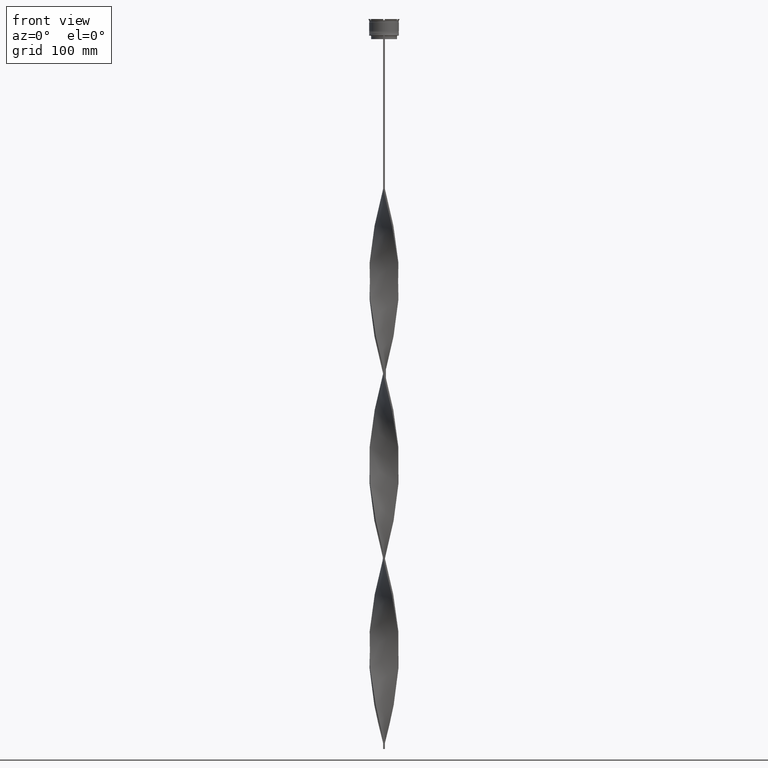
[diagram: clean part render]
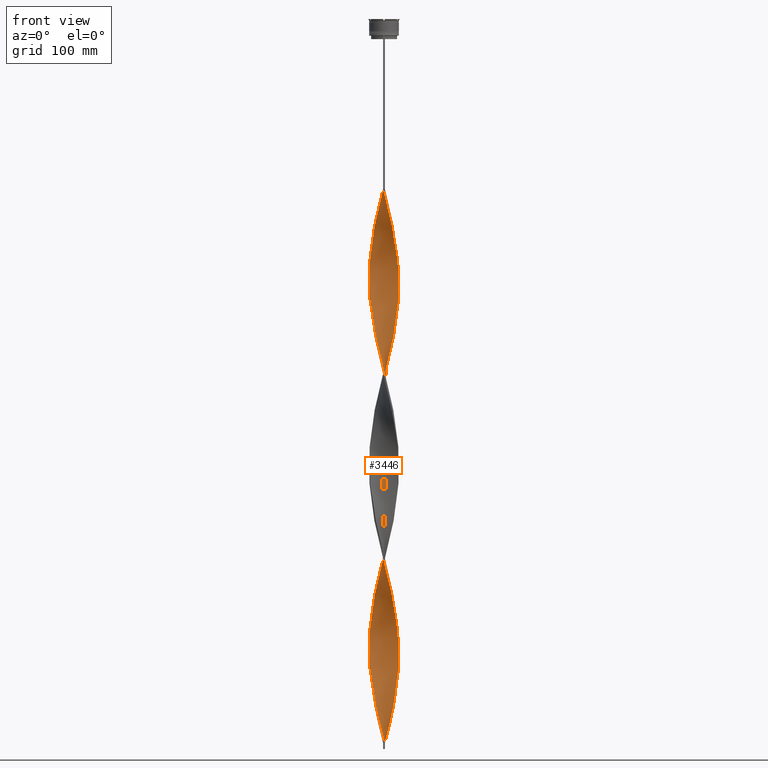
[diagram: same view with one face highlighted and labeled with its STEP entity id]
A machine part, front view. The second image highlights one B-rep face of the part: STEP entity #3446.
In plain terms, the highlighted face is a freeform B-spline surface patch.
Its self-contained STEP definition (entity closure, byte-faithful):
#1 = CARTESIAN_POINT ( 'NONE',  ( -5.364690916238543217, -11.31514875612458226, -273.4800000000000750 ) ) ;
#13 = CARTESIAN_POINT ( 'NONE',  ( 2.382186218714211989, -12.29380692948152820, -466.0933333333333621 ) ) ;
#14 = CARTESIAN_POINT ( 'NONE',  ( -2.382186218714212433, -12.29380692948152820, -596.5733333333333803 ) ) ;
#19 = CARTESIAN_POINT ( 'NONE',  ( -12.52471466338928074, 0.7514828798033587054, -376.0000000000000568 ) ) ;
#28 = CARTESIAN_POINT ( 'NONE',  ( -3.835060960407158159, 11.92077209873424870, -155.4266666666666765 ) ) ;
#40 = CARTESIAN_POINT ( 'NONE',  ( 10.95596916500943685, 6.064588993110950454, -559.2933333333334076 ) ) ;
#47 = CARTESIAN_POINT ( 'NONE',  ( -12.31811391348432316, -2.386896213156301183, -388.4266666666667334 ) ) ;
#52 = CARTESIAN_POINT ( 'NONE',  ( 11.92182448545694129, -3.911943871774655079, -357.3600000000000705 ) ) ;
#61 = CARTESIAN_POINT ( 'NONE',  ( 6.740552907874703514, -10.55355136890619860, -484.7333333333333485 ) ) ;
#67 = CARTESIAN_POINT ( 'NONE',  ( -6.012726175543712692, 11.01273480366649871, -164.7466666666667265 ) ) ;
#73 = CARTESIAN_POINT ( 'NONE',  ( -2.310751445539661386, 12.30743384125774575, -459.8799999999999955 ) ) ;
#88 = CARTESIAN_POINT ( 'NONE',  ( 6.012726175543710028, 11.01273480366650048, -587.2533333333335577 ) ) ;
#92 = EDGE_CURVE ( 'NONE', #4416, #4265, #1254, .T. ) ;
#100 = CARTESIAN_POINT ( 'NONE',  ( 11.65644370790820972, 4.576004816908206152, -391.5333333333334167 ) ) ;
#111 = CARTESIAN_POINT ( 'NONE',  ( 9.690996458280338288, -7.969804989054245503, -500.2666666666666515 ) ) ;
#119 = CARTESIAN_POINT ( 'NONE',  ( -6.679150936304338870, 10.59251824497200900, -167.8533333333333530 ) ) ;
#126 = EDGE_CURVE ( 'NONE', #4416, #3621, #3809, .T. ) ;
#131 = CARTESIAN_POINT ( 'NONE',  ( 12.42824121570641083, 1.533401540437624888, -379.1066666666666833 ) ) ;
#144 = CARTESIAN_POINT ( 'NONE',  ( 3.085069550408700678, 12.16205368295573130, -599.6799999999999500 ) ) ;
#151 = CARTESIAN_POINT ( 'NONE',  ( 12.11996919947063134, 3.149420042465480130, -236.2000000000000171 ) ) ;
#153 = CARTESIAN_POINT ( 'NONE',  ( 3.085069550408703343, -12.16205368295572953, -307.6533333333333644 ) ) ;
#167 = CARTESIAN_POINT ( 'NONE',  ( 7.954078399437126023, 9.671873490467488566, -577.9333333333333940 ) ) ;
#175 = CARTESIAN_POINT ( 'NONE',  ( 4.652802097321417918, -11.65266650003840709, -164.7466666666666981 ) ) ;
#179 = CARTESIAN_POINT ( 'NONE',  ( -11.65644370790820794, -4.576004816908209705, -546.8666666666666742 ) ) ;
#197 = CARTESIAN_POINT ( 'NONE',  ( 2.310751445539661830, -12.30743384125774575, -304.5466666666666811 ) ) ;
#203 = ORIENTED_EDGE ( 'NONE', *, *, #92, .T. ) ;
#205 = CARTESIAN_POINT ( 'NONE',  ( 8.615698626491365530, -9.121564618826679904, -183.3866666666666845 ) ) ;
#207 = CARTESIAN_POINT ( 'NONE',  ( -0.03643334067061931858, -12.54718600044023979, -605.8933333333335440 ) ) ;
#217 = CARTESIAN_POINT ( 'NONE',  ( 8.010112353542544028, 9.625518172214164281, -416.3866666666666561 ) ) ;
#223 = CARTESIAN_POINT ( 'NONE',  ( 4.585052370405612088, 11.67949051451277143, -282.8000000000000682 ) ) ;
#225 = CARTESIAN_POINT ( 'NONE',  ( -12.42824121570641083, -1.533401540437621113, -534.4400000000000546 ) ) ;
#235 = CARTESIAN_POINT ( 'NONE',  ( 0.8225793935679390767, 12.49543369160420170, -447.4533333333333758 ) ) ;
#241 = CARTESIAN_POINT ( 'NONE',  ( -6.740552907874707067, 10.55355136890619505, -329.4000000000000341 ) ) ;
#245 = CARTESIAN_POINT ( 'NONE',  ( -10.57441756647771847, 6.753880147568762204, -500.2666666666666515 ) ) ;
#262 = CARTESIAN_POINT ( 'NONE',  ( -2.310751445539661386, 12.30743384125774575, -459.8799999999999955 ) ) ;
#270 = CARTESIAN_POINT ( 'NONE',  ( 12.13805464816931767, -3.078981870368072915, -211.3466666666666924 ) ) ;
#274 = CARTESIAN_POINT ( 'NONE',  ( -12.52242699500038015, 0.03636144779521285897, -528.2266666666666879 ) ) ;
#289 = CARTESIAN_POINT ( 'NONE',  ( 6.012726175543709140, 11.01273480366650048, -276.5866666666667584 ) ) ;
#290 = CARTESIAN_POINT ( 'NONE',  ( -0.7499999999999997780, 12.50000000000000000, -453.6666666666667425 ) ) ;
#296 = CARTESIAN_POINT ( 'NONE',  ( -2.382186218714214654, 12.29380692948152820, -310.7600000000000477 ) ) ;
#299 = CARTESIAN_POINT ( 'NONE',  ( -10.15222897254093937, -7.331080881363972068, -248.6266666666666936 ) ) ;
#317 = CARTESIAN_POINT ( 'NONE',  ( 10.61346148680155466, -6.692356773673691528, -506.4800000000001887 ) ) ;
#322 = CARTESIAN_POINT ( 'NONE',  ( -10.95596916500943685, 6.064588993110946014, -192.7066666666667061 ) ) ;
#335 = CARTESIAN_POINT ( 'NONE',  ( 4.585052370405611200, 11.67949051451277143, -282.8000000000000682 ) ) ;
#345 = CARTESIAN_POINT ( 'NONE',  ( -10.10948352700888186, -7.389914939776783598, -410.1733333333334031 ) ) ;
#361 = CARTESIAN_POINT ( 'NONE',  ( -8.615698626491365530, 9.121564618826679904, -338.7200000000000273 ) ) ;
#367 = CARTESIAN_POINT ( 'NONE',  ( -12.13805464816931767, 3.078981870368074247, -366.6800000000000068 ) ) ;
#383 = CARTESIAN_POINT ( 'NONE',  ( -11.36854588750133388, 5.309366094152150772, -357.3600000000000705 ) ) ;
#384 = CARTESIAN_POINT ( 'NONE',  ( -7.404526080593735848, -10.12947172560163978, -574.8266666666665969 ) ) ;
#389 = CARTESIAN_POINT ( 'NONE',  ( 1.608725446465268050, -12.44368138276816538, -462.9866666666666788 ) ) ;
#395 = CARTESIAN_POINT ( 'NONE',  ( -12.31811391348432316, 2.386896213156299407, -208.2400000000000659 ) ) ;
#407 = CARTESIAN_POINT ( 'NONE',  ( 9.644549487540050592, 8.025949731984798774, -568.6133333333334576 ) ) ;
#408 = CARTESIAN_POINT ( 'NONE',  ( -10.10948352700888364, 7.389914939776779157, -497.1600000000000250 ) ) ;
#414 = CARTESIAN_POINT ( 'NONE',  ( -12.33176776802354802, 2.315320201071879413, -369.7866666666666333 ) ) ;
#423 = CARTESIAN_POINT ( 'NONE',  ( 9.153347542385844804, 8.545684803940465812, -410.1733333333334031 ) ) ;
#435 = CARTESIAN_POINT ( 'NONE',  ( 8.562581101809280781, 9.171445294657461389, -574.8266666666667106 ) ) ;
#441 = CARTESIAN_POINT ( 'NONE',  ( -12.41912662004790313, 1.605550994275040111, -211.3466666666666924 ) ) ;
#448 = CARTESIAN_POINT ( 'NONE',  ( 5.364690916238544105, 11.31514875612458226, -428.8133333333333894 ) ) ;
#466 = CARTESIAN_POINT ( 'NONE',  ( -11.92182448545694129, 3.911943871774655523, -202.0266666666667277 ) ) ;
#473 = CARTESIAN_POINT ( 'NONE',  ( 8.615698626491365530, -9.121564618826679904, -183.3866666666666845 ) ) ;
#475 = CARTESIAN_POINT ( 'NONE',  ( 3.835060960407161268, -11.92077209873424870, -310.7600000000000477 ) ) ;
#482 = CARTESIAN_POINT ( 'NONE',  ( 12.13805464816931767, -3.078981870368072915, -522.0133333333334349 ) ) ;
#489 = CARTESIAN_POINT ( 'NONE',  ( 12.31811391348432316, 2.386896213156300295, -543.7599999999999909 ) ) ;
#499 = CARTESIAN_POINT ( 'NONE',  ( 4.585052370405619193, -11.67949051451277143, -313.8666666666666742 ) ) ;
#508 = CARTESIAN_POINT ( 'NONE',  ( -3.085069550408702010, -12.16205368295573130, -444.3466666666668061 ) ) ;
#516 = CARTESIAN_POINT ( 'NONE',  ( -12.33176776802354624, -2.315320201071887407, -226.8800000000000523 ) ) ;
#522 = CARTESIAN_POINT ( 'NONE',  ( 9.644549487540050592, 8.025949731984798774, -257.9466666666666583 ) ) ;
#525 = CARTESIAN_POINT ( 'NONE',  ( -3.085069550408701566, 12.16205368295573130, -462.9866666666667356 ) ) ;
#539 = CARTESIAN_POINT ( 'NONE',  ( -10.95596916500943685, 6.064588993110946014, -192.7066666666667061 ) ) ;
#544 = CARTESIAN_POINT ( 'NONE',  ( 8.562581101809280781, 9.171445294657461389, -264.1600000000000819 ) ) ;
#547 = CARTESIAN_POINT ( 'NONE',  ( -8.562581101809284334, 9.171445294657459613, -487.8400000000000887 ) ) ;
#562 = CARTESIAN_POINT ( 'NONE',  ( -1.536433340670622094, 12.45281399955976553, -456.7733333333334258 ) ) ;
#567 = CARTESIAN_POINT ( 'NONE',  ( 11.65644370790820794, -4.576004816908208817, -205.1333333333333542 ) ) ;
#568 = CARTESIAN_POINT ( 'NONE',  ( -5.364690916238544993, 11.31514875612458226, -323.1866666666667243 ) ) ;
#571 = CARTESIAN_POINT ( 'NONE',  ( -12.33176776802354446, -2.315320201071886963, -537.5466666666667379 ) ) ;
#578 = CARTESIAN_POINT ( 'NONE',  ( 0.7500000000000011102, -4.166666666666667851, -609.0000000000000000 ) ) ;
#587 = CARTESIAN_POINT ( 'NONE',  ( 10.10948352700888364, -7.389914939776777381, -341.8266666666667106 ) ) ;
#594 = CARTESIAN_POINT ( 'NONE',  ( 6.679150936304337982, 10.59251824497200900, -273.4800000000000750 ) ) ;
#596 = CARTESIAN_POINT ( 'NONE',  ( -10.15222897254093937, -7.331080881363972068, -559.2933333333334076 ) ) ;
#608 = CARTESIAN_POINT ( 'NONE',  ( 9.153347542385844804, 8.545684803940465812, -410.1733333333334031 ) ) ;
#616 = CARTESIAN_POINT ( 'NONE',  ( 10.95596916500943685, 6.064588993110950454, -248.6266666666666936 ) ) ;
#629 = CARTESIAN_POINT ( 'NONE',  ( 12.52242699500038015, -0.03636144779521166548, -372.8933333333333735 ) ) ;
#637 = CARTESIAN_POINT ( 'NONE',  ( 7.404526080593739401, -10.12947172560163800, -177.1733333333333462 ) ) ;
#638 = EDGE_LOOP ( 'NONE', ( #203, #1579, #1013, #1760 ) ) ;
#641 = CARTESIAN_POINT ( 'NONE',  ( -12.31811391348432316, 2.386896213156299407, -518.9066666666666379 ) ) ;
#657 = CARTESIAN_POINT ( 'NONE',  ( -0.03643334067061931858, -12.54718600044023979, -295.2266666666667447 ) ) ;
#665 = CARTESIAN_POINT ( 'NONE',  ( 11.92182448545694129, 3.911943871774657300, -239.3066666666667288 ) ) ;
#686 = CARTESIAN_POINT ( 'NONE',  ( -4.652802097321415253, -11.65266650003840887, -587.2533333333335577 ) ) ;
#691 = CARTESIAN_POINT ( 'NONE',  ( -7.954078399437118918, -9.671873490467493895, -422.6000000000000227 ) ) ;
#698 = CARTESIAN_POINT ( 'NONE',  ( -11.33752076354116056, 5.375297838653130711, -195.8133333333333610 ) ) ;
#711 = CARTESIAN_POINT ( 'NONE',  ( -11.92182448545693774, -3.911943871774660408, -394.6400000000000432 ) ) ;
#712 = CARTESIAN_POINT ( 'NONE',  ( -3.904224544142283815, -11.89829948811665261, -590.3600000000000136 ) ) ;
#718 = CARTESIAN_POINT ( 'NONE',  ( 12.52013932661148488, 0.8242057753937857001, -537.5466666666667379 ) ) ;
#723 = CARTESIAN_POINT ( 'NONE',  ( -3.085069550408701566, 12.16205368295573130, -152.3200000000000500 ) ) ;
#737 = CARTESIAN_POINT ( 'NONE',  ( -3.155646990963159926, 12.14393247619489813, -313.8666666666666742 ) ) ;
#745 = CARTESIAN_POINT ( 'NONE',  ( 6.076579735155670292, -10.97763101221075921, -481.6266666666667788 ) ) ;
#752 = CARTESIAN_POINT ( 'NONE',  ( -6.679150936304338870, 10.59251824497200900, -167.8533333333333530 ) ) ;
#762 = CARTESIAN_POINT ( 'NONE',  ( -10.61346148680155110, -6.692356773673695081, -556.1866666666668380 ) ) ;
#767 = CARTESIAN_POINT ( 'NONE',  ( 12.52471466338928074, -0.7514828798033543755, -531.3333333333334849 ) ) ;
#784 = CARTESIAN_POINT ( 'NONE',  ( 12.52471466338928074, -0.7514828798033543755, -531.3333333333335986 ) ) ;
#785 = CARTESIAN_POINT ( 'NONE',  ( -11.62967262449904915, 4.643620855213893783, -509.5866666666666447 ) ) ;
#789 = CARTESIAN_POINT ( 'NONE',  ( -8.562581101809284334, -9.171445294657461389, -419.4933333333333394 ) ) ;
#797 = CARTESIAN_POINT ( 'NONE',  ( -12.42824121570641083, -1.533401540437621113, -223.7733333333333405 ) ) ;
#800 = CARTESIAN_POINT ( 'NONE',  ( -0.7499999999999997780, 12.50000000000000000, -143.0000000000000284 ) ) ;
#807 = CARTESIAN_POINT ( 'NONE',  ( 12.31811391348432316, 2.386896213156300739, -543.7599999999999909 ) ) ;
#813 = CARTESIAN_POINT ( 'NONE',  ( -2.310751445539661386, 12.30743384125774575, -149.2133333333333383 ) ) ;
#823 = CARTESIAN_POINT ( 'NONE',  ( 6.076579735155665851, 10.97763101221075743, -425.7066666666667061 ) ) ;
#834 = CARTESIAN_POINT ( 'NONE',  ( 9.153347542385850133, -8.545684803940462260, -497.1600000000000250 ) ) ;
#840 = CARTESIAN_POINT ( 'NONE',  ( -7.404526080593735848, -10.12947172560163978, -264.1600000000000819 ) ) ;
#849 = CARTESIAN_POINT ( 'NONE',  ( 10.99100368715144072, 6.000861433912922926, -397.7466666666666697 ) ) ;
#857 = CARTESIAN_POINT ( 'NONE',  ( 12.52013932661148310, 0.8242057753937857001, -537.5466666666667379 ) ) ;
#863 = CARTESIAN_POINT ( 'NONE',  ( -10.57441756647771847, 6.753880147568762204, -189.6000000000000227 ) ) ;
#870 = CARTESIAN_POINT ( 'NONE',  ( 2.382186218714207993, 12.29380692948152998, -441.2400000000000091 ) ) ;
#877 = CARTESIAN_POINT ( 'NONE',  ( 11.36854588750133388, -5.309366094152150772, -512.6933333333334986 ) ) ;
#884 = CARTESIAN_POINT ( 'NONE',  ( 11.92182448545694129, 3.911943871774657300, -549.9733333333333576 ) ) ;
#891 = CARTESIAN_POINT ( 'NONE',  ( 0.03643334067062224679, -12.54718600044023979, -146.1066666666667118 ) ) ;
#893 = CARTESIAN_POINT ( 'NONE',  ( 11.94434152831508911, 3.842643539664265528, -388.4266666666667334 ) ) ;
#911 = CARTESIAN_POINT ( 'NONE',  ( -10.99100368715144072, -6.000861433912923815, -242.4133333333333553 ) ) ;
#918 = CARTESIAN_POINT ( 'NONE',  ( 9.153347542385850133, -8.545684803940462260, -186.4933333333333394 ) ) ;
#923 = CARTESIAN_POINT ( 'NONE',  ( -6.012726175543711804, 11.01273480366649871, -475.4133333333333553 ) ) ;
#935 = CARTESIAN_POINT ( 'NONE',  ( 4.585052370405619193, -11.67949051451277143, -313.8666666666666742 ) ) ;
#944 = CARTESIAN_POINT ( 'NONE',  ( -11.92182448545694129, 3.911943871774655079, -512.6933333333334986 ) ) ;
#956 = CARTESIAN_POINT ( 'NONE',  ( 6.076579735155664963, 10.97763101221075921, -425.7066666666667629 ) ) ;
#962 = CARTESIAN_POINT ( 'NONE',  ( 7.954078399437126023, 9.671873490467488566, -267.2666666666667084 ) ) ;
#965 = CARTESIAN_POINT ( 'NONE',  ( -8.615698626491363754, -9.121564618826681681, -568.6133333333334576 ) ) ;
#984 = CARTESIAN_POINT ( 'NONE',  ( 7.404526080593737625, 10.12947172560163978, -419.4933333333333394 ) ) ;
#990 = CARTESIAN_POINT ( 'NONE',  ( -0.8225793935679454050, 12.49543369160420347, -304.5466666666666811 ) ) ;
#992 = CARTESIAN_POINT ( 'NONE',  ( -7.345575697064967713, 10.17230168627752107, -481.6266666666667788 ) ) ;
#1006 = CARTESIAN_POINT ( 'NONE',  ( 3.155646990963148379, 12.14393247619489813, -438.1333333333334394 ) ) ;
#1012 = CARTESIAN_POINT ( 'NONE',  ( -8.615698626491365530, 9.121564618826679904, -338.7200000000000273 ) ) ;
#1013 = ORIENTED_EDGE ( 'NONE', *, *, #2906, .F. ) ;
#1015 = CARTESIAN_POINT ( 'NONE',  ( -9.644549487540052368, 8.025949731984796998, -494.0533333333333985 ) ) ;
#1025 = CARTESIAN_POINT ( 'NONE',  ( -10.15222897254094470, 7.331080881363965851, -348.0400000000000205 ) ) ;
#1026 = CARTESIAN_POINT ( 'NONE',  ( 12.52013932661148665, -0.8242057753937777065, -369.7866666666666333 ) ) ;
#1033 = CARTESIAN_POINT ( 'NONE',  ( 12.11996919947063134, 3.149420042465480130, -236.2000000000000171 ) ) ;
#1052 = CARTESIAN_POINT ( 'NONE',  ( -12.52242699500038015, -0.03636144779521806314, -379.1066666666666833 ) ) ;
#1054 = CARTESIAN_POINT ( 'NONE',  ( -11.65644370790820794, -4.576004816908209705, -546.8666666666666742 ) ) ;
#1060 = CARTESIAN_POINT ( 'NONE',  ( 11.94434152831508911, -3.842643539664263752, -208.2400000000000659 ) ) ;
#1067 = CARTESIAN_POINT ( 'NONE',  ( -8.010112353542547581, -9.625518172214162504, -261.0533333333333417 ) ) ;
#1076 = CARTESIAN_POINT ( 'NONE',  ( -10.95596916500943685, -6.064588993110948678, -403.9600000000000364 ) ) ;
#1083 = CARTESIAN_POINT ( 'NONE',  ( 12.13805464816931767, -3.078981870368072915, -522.0133333333334349 ) ) ;
#1101 = CARTESIAN_POINT ( 'NONE',  ( -10.57441756647771136, -6.753880147568771086, -407.0666666666666629 ) ) ;
#1120 = CARTESIAN_POINT ( 'NONE',  ( -7.404526080593742066, 10.12947172560163622, -332.5066666666667743 ) ) ;
#1121 = CARTESIAN_POINT ( 'NONE',  ( -6.679150936304338870, 10.59251824497200900, -478.5200000000000387 ) ) ;
#1129 = CARTESIAN_POINT ( 'NONE',  ( -11.92182448545693774, -3.911943871774660408, -394.6399999999999864 ) ) ;
#1136 = CARTESIAN_POINT ( 'NONE',  ( -9.644549487540052368, 8.025949731984796998, -183.3866666666666845 ) ) ;
#1150 = CARTESIAN_POINT ( 'NONE',  ( 7.404526080593739401, -10.12947172560163800, -487.8400000000000887 ) ) ;
#1156 = CARTESIAN_POINT ( 'NONE',  ( -9.103565294674663022, -8.598697513321132746, -416.3866666666666561 ) ) ;
#1171 = CARTESIAN_POINT ( 'NONE',  ( 7.954078399437126023, 9.671873490467488566, -577.9333333333333940 ) ) ;
#1177 = CARTESIAN_POINT ( 'NONE',  ( -10.15222897254093937, -7.331080881363972068, -248.6266666666666936 ) ) ;
#1185 = CARTESIAN_POINT ( 'NONE',  ( 7.345575697064968601, -10.17230168627751929, -326.2933333333333508 ) ) ;
#1202 = CARTESIAN_POINT ( 'NONE',  ( -8.615698626491363754, -9.121564618826681681, -257.9466666666666583 ) ) ;
#1211 = CARTESIAN_POINT ( 'NONE',  ( 1.536433340670621650, -12.45281399955976553, -301.4400000000000546 ) ) ;
#1227 = CARTESIAN_POINT ( 'NONE',  ( -3.835060960407158159, 11.92077209873424870, -155.4266666666666765 ) ) ;
#1234 = CARTESIAN_POINT ( 'NONE',  ( 6.679150936304339758, -10.59251824497200900, -323.1866666666667243 ) ) ;
#1244 = CARTESIAN_POINT ( 'NONE',  ( 6.679150936304337982, 10.59251824497200900, -584.1466666666666470 ) ) ;
#1249 = CARTESIAN_POINT ( 'NONE',  ( -4.585052370405615640, 11.67949051451277143, -158.5333333333333883 ) ) ;
#1254 = LINE ( 'NONE', #4601, #3944 ) ;
#1256 = CARTESIAN_POINT ( 'NONE',  ( 3.155646990963147935, 12.14393247619489991, -438.1333333333334394 ) ) ;
#1270 = CARTESIAN_POINT ( 'NONE',  ( -11.36854588750133388, -5.309366094152152549, -239.3066666666667288 ) ) ;
#1281 = CARTESIAN_POINT ( 'NONE',  ( 12.52242699500038015, -0.03636144779521166548, -372.8933333333333735 ) ) ;
#1290 = CARTESIAN_POINT ( 'NONE',  ( 0.7500000000000037748, -12.50000000000000000, -609.0000000000000000 ) ) ;
#1298 = CARTESIAN_POINT ( 'NONE',  ( 11.33752076354115879, -5.375297838653132487, -351.1466666666667606 ) ) ;
#1305 = CARTESIAN_POINT ( 'NONE',  ( 12.13805464816931767, -3.078981870368072915, -211.3466666666666924 ) ) ;
#1308 = CARTESIAN_POINT ( 'NONE',  ( -10.99100368715144072, -6.000861433912923815, -553.0800000000000409 ) ) ;
#1319 = CARTESIAN_POINT ( 'NONE',  ( -3.835060960407158159, 11.92077209873424870, -466.0933333333333621 ) ) ;
#1324 = CARTESIAN_POINT ( 'NONE',  ( 10.57441756647771847, 6.753880147568762204, -251.7333333333334338 ) ) ;
#1327 = CARTESIAN_POINT ( 'NONE',  ( -12.13805464816931412, -3.078981870368076912, -540.6533333333334213 ) ) ;
#1339 = CARTESIAN_POINT ( 'NONE',  ( 5.298889272974667719, -11.34611265908963240, -316.9733333333333576 ) ) ;
#1345 = CARTESIAN_POINT ( 'NONE',  ( 12.31811391348432316, 2.386896213156300295, -233.0933333333333906 ) ) ;
#1365 = CARTESIAN_POINT ( 'NONE',  ( -3.155646990963153264, -12.14393247619489813, -282.8000000000000682 ) ) ;
#1371 = CARTESIAN_POINT ( 'NONE',  ( 6.012726175543710028, 11.01273480366650048, -276.5866666666667584 ) ) ;
#1374 = CARTESIAN_POINT ( 'NONE',  ( -6.076579735155671180, -10.97763101221075743, -581.0400000000000773 ) ) ;
#1386 = CARTESIAN_POINT ( 'NONE',  ( -12.42824121570641083, 1.533401540437618671, -372.8933333333333735 ) ) ;
#1387 = CARTESIAN_POINT ( 'NONE',  ( 10.99100368715144072, 6.000861433912922926, -397.7466666666666697 ) ) ;
#1393 = CARTESIAN_POINT ( 'NONE',  ( 10.99100368715144072, -6.000861433912922926, -198.9200000000000159 ) ) ;
#1412 = CARTESIAN_POINT ( 'NONE',  ( -11.62967262449904915, -4.643620855213893783, -397.7466666666666697 ) ) ;
#1413 = CARTESIAN_POINT ( 'NONE',  ( -8.562581101809286110, 9.171445294657459613, -487.8400000000000887 ) ) ;
#1420 = CARTESIAN_POINT ( 'NONE',  ( 1.608725446465268050, -12.44368138276816538, -152.3200000000000500 ) ) ;
#1425 = CARTESIAN_POINT ( 'NONE',  ( -12.52013932661148488, 0.8242057753937841458, -214.4533333333333758 ) ) ;
#1439 = CARTESIAN_POINT ( 'NONE',  ( -12.13805464816931767, 3.078981870368074247, -366.6800000000000068 ) ) ;
#1440 = CARTESIAN_POINT ( 'NONE',  ( -6.076579735155670292, -10.97763101221075921, -581.0400000000000773 ) ) ;
#1448 = CARTESIAN_POINT ( 'NONE',  ( 10.99100368715144072, -6.000861433912922926, -509.5866666666666447 ) ) ;
#1455 = CARTESIAN_POINT ( 'NONE',  ( -4.585052370405614752, 11.67949051451277143, -158.5333333333333883 ) ) ;
#1464 = CARTESIAN_POINT ( 'NONE',  ( -7.954078399437118918, -9.671873490467493895, -422.6000000000000227 ) ) ;
#1465 = CARTESIAN_POINT ( 'NONE',  ( -0.03643334067061931858, -12.54718600044023979, -605.8933333333335440 ) ) ;
#1471 = CARTESIAN_POINT ( 'NONE',  ( -11.33752076354115523, -5.375297838653137816, -400.8533333333334099 ) ) ;
#1475 = CARTESIAN_POINT ( 'NONE',  ( -11.94434152831508911, -3.842643539664264640, -233.0933333333333906 ) ) ;
#1486 = CARTESIAN_POINT ( 'NONE',  ( -6.679150936304338870, -10.59251824497200900, -428.8133333333333894 ) ) ;
#1487 = CARTESIAN_POINT ( 'NONE',  ( -12.42824121570641083, -1.533401540437621113, -534.4400000000000546 ) ) ;
#1491 = CARTESIAN_POINT ( 'NONE',  ( -12.52242699500038015, -0.03636144779521806314, -379.1066666666666833 ) ) ;
#1499 = CARTESIAN_POINT ( 'NONE',  ( -4.652802097321415253, -11.65266650003840887, -276.5866666666667584 ) ) ;
#1511 = CARTESIAN_POINT ( 'NONE',  ( 3.904224544142286479, -11.89829948811665083, -472.3066666666667288 ) ) ;
#1519 = CARTESIAN_POINT ( 'NONE',  ( -9.644549487540052368, -8.025949731984796998, -413.2800000000000864 ) ) ;
#1527 = CARTESIAN_POINT ( 'NONE',  ( -1.536433340670621872, 12.45281399955976553, -146.1066666666667118 ) ) ;
#1536 = CARTESIAN_POINT ( 'NONE',  ( 1.608725446465268050, -12.44368138276816538, -462.9866666666667356 ) ) ;
#1543 = CARTESIAN_POINT ( 'NONE',  ( -12.11996919947063311, -3.149420042465475689, -391.5333333333334167 ) ) ;
#1549 = CARTESIAN_POINT ( 'NONE',  ( 12.41912662004790313, -1.605550994275041443, -366.6800000000000068 ) ) ;
#1558 = CARTESIAN_POINT ( 'NONE',  ( -4.585052370405607647, -11.67949051451277320, -438.1333333333334394 ) ) ;
#1565 = CARTESIAN_POINT ( 'NONE',  ( -11.62967262449904915, 4.643620855213893783, -198.9200000000000159 ) ) ;
#1573 = CARTESIAN_POINT ( 'NONE',  ( 7.954078399437126912, -9.671873490467486789, -329.4000000000000341 ) ) ;
#1579 = ORIENTED_EDGE ( 'NONE', *, *, #1591, .T. ) ;
#1582 = CARTESIAN_POINT ( 'NONE',  ( -2.310751445539655613, -12.30743384125774753, -447.4533333333333758 ) ) ;
#1589 = CARTESIAN_POINT ( 'NONE',  ( -7.954078399437124247, 9.671873490467490342, -174.0666666666666629 ) ) ;
#1591 = EDGE_CURVE ( 'NONE', #4265, #4823, #1789, .T. ) ;
#1598 = CARTESIAN_POINT ( 'NONE',  ( 12.31811391348432316, 2.386896213156300739, -233.0933333333333906 ) ) ;
#1599 = CARTESIAN_POINT ( 'NONE',  ( -0.7499999999999997780, -12.50000000000000000, -143.0000000000000284 ) ) ;
#1603 = CARTESIAN_POINT ( 'NONE',  ( -0.03643334067061931858, -12.54718600044023979, -295.2266666666667447 ) ) ;
#1613 = CARTESIAN_POINT ( 'NONE',  ( 11.33752076354115701, 5.375297838653134264, -556.1866666666668380 ) ) ;
#1618 = CARTESIAN_POINT ( 'NONE',  ( -11.33752076354116056, 5.375297838653130711, -195.8133333333333610 ) ) ;
#1626 = CARTESIAN_POINT ( 'NONE',  ( 10.95596916500943863, -6.064588993110942461, -348.0400000000000205 ) ) ;
#1641 = CARTESIAN_POINT ( 'NONE',  ( 10.95596916500943685, 6.064588993110950454, -559.2933333333334076 ) ) ;
#1647 = CARTESIAN_POINT ( 'NONE',  ( 1.608725446465268050, -12.44368138276816538, -152.3200000000000500 ) ) ;
#1650 = CARTESIAN_POINT ( 'NONE',  ( 6.012726175543710916, -11.01273480366649871, -320.0800000000000978 ) ) ;
#1664 = CARTESIAN_POINT ( 'NONE',  ( -11.94434152831508911, -3.842643539664265084, -233.0933333333333906 ) ) ;
#1672 = CARTESIAN_POINT ( 'NONE',  ( 6.076579735155671180, -10.97763101221075743, -170.9600000000000364 ) ) ;
#1675 = CARTESIAN_POINT ( 'NONE',  ( -11.36854588750133388, -5.309366094152152549, -549.9733333333334713 ) ) ;
#1691 = CARTESIAN_POINT ( 'NONE',  ( -1.608725446465267161, -12.44368138276816538, -289.0133333333333212 ) ) ;
#1701 = CARTESIAN_POINT ( 'NONE',  ( 12.41912662004790313, 1.605550994275044108, -229.9866666666666788 ) ) ;
#1714 = CARTESIAN_POINT ( 'NONE',  ( 9.103565294674670128, -8.598697513321129193, -335.6133333333334008 ) ) ;
#1720 = CARTESIAN_POINT ( 'NONE',  ( 8.562581101809282558, 9.171445294657461389, -264.1600000000000819 ) ) ;
#1723 = CARTESIAN_POINT ( 'NONE',  ( -3.155646990963152820, -12.14393247619489813, -593.4666666666666970 ) ) ;
#1733 = CARTESIAN_POINT ( 'NONE',  ( 12.41912662004790313, -1.605550994275041443, -366.6800000000000068 ) ) ;
#1740 = CARTESIAN_POINT ( 'NONE',  ( -7.404526080593742954, 10.12947172560163622, -332.5066666666668311 ) ) ;
#1744 = CARTESIAN_POINT ( 'NONE',  ( -4.652802097321415253, -11.65266650003840887, -587.2533333333335577 ) ) ;
#1760 = ORIENTED_EDGE ( 'NONE', *, *, #126, .F. ) ;
#1763 = CARTESIAN_POINT ( 'NONE',  ( -3.085069550408701566, 12.16205368295573130, -462.9866666666666788 ) ) ;
#1770 = CARTESIAN_POINT ( 'NONE',  ( 2.382186218714211989, -12.29380692948152820, -155.4266666666666765 ) ) ;
#1785 = CARTESIAN_POINT ( 'NONE',  ( -12.41912662004790313, -1.605550994275048104, -385.3199999999999932 ) ) ;
#1786 = CARTESIAN_POINT ( 'NONE',  ( 0.7500000000000037748, -12.50000000000000000, -298.3333333333333144 ) ) ;
#1789 =( BOUNDED_CURVE ( )  B_SPLINE_CURVE ( 2, ( #4118, #1527, #4092, #723, #28, #1455, #3044, #2288, #752, #3750, #2216, #4458, #3724, #1136, #3772, #2592, #322, #698, #4847, #1846, #2569, #395, #2244, #1425, #4068, #4167, #797, #1869, #3369, #1475, #1890, #2992, #2973, #4529, #299, #1796, #4797, #2947, #1067, #2190, #1817, #4826, #1, #1499, #2321, #2348, #3874, #3852, #2692, #1603, #2371, #1211, #3516, #153, #475, #499, #1969, #1650, #1234, #1185, #1573, #4577, #1918, #3437, #2402, #3487, #1626, #4291, #1994, #52, #3826, #2746, #1549, #4191, #1281, #2799, #131, #2724, #4219, #893, #100, #3119, #849, #3163, #4603, #3140, #423, #4653, #4626, #3064, #4552, #823, #448, #1943, #4239, #1256, #870, #3460, #2770, #4263, #3901, #3796, #73, #525, #2015, #3088, #3535, #923, #3191, #992, #3216, #547, #2038, #1015, #3970, #245, #2916, #3990, #3559, #944, #2138, #641, #3943, #2426, #274, #3923, #225, #571, #1327, #2474, #179, #1675, #1308, #4749, #596, #4681, #4312, #965, #3291, #4403, #2825, #1374, #2449, #1744, #2066, #1723, #3264, #3586, #4702, #207, #2845 ),
 .UNSPECIFIED., .F., .T. ) 
 B_SPLINE_CURVE_WITH_KNOTS ( ( 3, 2, 2, 2, 2, 2, 2, 2, 2, 2, 2, 2, 2, 2, 2, 2, 2, 2, 2, 2, 2, 2, 2, 2, 2, 2, 2, 2, 2, 2, 2, 2, 2, 2, 2, 2, 2, 2, 2, 2, 2, 2, 2, 2, 2, 2, 2, 2, 2, 2, 2, 2, 2, 2, 2, 2, 2, 2, 2, 2, 2, 2, 2, 2, 2, 2, 2, 2, 2, 2, 2, 2, 2, 2, 2, 3 ),
 ( 0.000000000000000000, 0.01000000000000000021, 0.02000000000000000042, 0.02999999999999999889, 0.04000000000000000083, 0.05000000000000000971, 0.05999999999999999778, 0.07000000000000000666, 0.08000000000000000167, 0.09000000000000001055, 0.1000000000000000194, 0.1100000000000000006, 0.1199999999999999956, 0.1300000000000000044, 0.1400000000000000133, 0.1499999999999999944, 0.1600000000000000033, 0.1700000000000000122, 0.1800000000000000211, 0.1900000000000000300, 0.2000000000000000389, 0.2099999999999999922, 0.2200000000000000011, 0.2300000000000000100, 0.2399999999999999911, 0.2500000000000000000, 0.2600000000000000089, 0.2700000000000000178, 0.2800000000000000266, 0.2899999999999999800, 0.2999999999999999889, 0.3099999999999999978, 0.3200000000000000067, 0.3300000000000000155, 0.3400000000000000244, 0.3499999999999999223, 0.3600000000000000422, 0.3699999999999999400, 0.3800000000000000600, 0.3899999999999999578, 0.4000000000000000777, 0.4099999999999999756, 0.4199999999999999845, 0.4299999999999999933, 0.4400000000000000022, 0.4500000000000000111, 0.4600000000000000200, 0.4699999999999999734, 0.4799999999999999822, 0.4899999999999999911, 0.5000000000000000000, 0.5100000000000000089, 0.5200000000000000178, 0.5300000000000000266, 0.5400000000000000355, 0.5500000000000000444, 0.5600000000000000533, 0.5699999999999999512, 0.5799999999999999600, 0.5899999999999999689, 0.5999999999999999778, 0.6099999999999999867, 0.6199999999999999956, 0.6300000000000000044, 0.6400000000000000133, 0.6500000000000000222, 0.6600000000000000311, 0.6700000000000000400, 0.6800000000000000488, 0.6899999999999999467, 0.6999999999999998446, 0.7099999999999999645, 0.7200000000000000844, 0.7299999999999999822, 0.7399999999999998801, 0.7500000000000000000 ),
 .UNSPECIFIED. ) 
 CURVE ( )  GEOMETRIC_REPRESENTATION_ITEM ( )  RATIONAL_B_SPLINE_CURVE ( ( 1.000000000000000000, 0.9980267284282715590, 1.000000000000000000, 0.9980267284282715590, 1.000000000000000000, 0.9980267284282715590, 1.000000000000000000, 0.9980267284282715590, 1.000000000000000000, 0.9980267284282715590, 1.000000000000000000, 0.9980267284282715590, 1.000000000000000000, 0.9980267284282715590, 1.000000000000000000, 0.9980267284282715590, 1.000000000000000000, 0.9980267284282715590, 1.000000000000000000, 0.9980267284282715590, 1.000000000000000000, 0.9980267284282715590, 1.000000000000000000, 0.9980267284282715590, 1.000000000000000000, 0.9980267284282715590, 1.000000000000000000, 0.9980267284282715590, 1.000000000000000000, 0.9980267284282715590, 1.000000000000000000, 0.9980267284282715590, 1.000000000000000000, 0.9980267284282715590, 1.000000000000000000, 0.9980267284282715590, 1.000000000000000000, 0.9980267284282715590, 1.000000000000000000, 0.9980267284282715590, 1.000000000000000000, 0.9980267284282715590, 1.000000000000000000, 0.9980267284282715590, 1.000000000000000000, 0.9980267284282715590, 1.000000000000000000, 0.9980267284282715590, 1.000000000000000000, 0.9980267284282715590, 1.000000000000000000, 0.9980267284282715590, 1.000000000000000000, 0.9980267284282715590, 1.000000000000000000, 0.9980267284282715590, 1.000000000000000000, 0.9980267284282715590, 1.000000000000000000, 0.9980267284282715590, 1.000000000000000000, 0.9980267284282715590, 1.000000000000000000, 0.9980267284282715590, 1.000000000000000000, 0.9980267284282715590, 1.000000000000000000, 0.9980267284282715590, 1.000000000000000000, 0.9980267284282715590, 1.000000000000000000, 0.9980267284282715590, 1.000000000000000000, 0.9980267284282715590, 1.000000000000000000, 0.9980267284282715590, 1.000000000000000000, 0.9980267284282715590, 1.000000000000000000, 0.9980267284282715590, 1.000000000000000000, 0.9980267284282715590, 1.000000000000000000, 0.9980267284282715590, 1.000000000000000000, 0.9980267284282715590, 1.000000000000000000, 0.9980267284282715590, 1.000000000000000000, 0.9980267284282715590, 1.000000000000000000, 0.9980267284282715590, 1.000000000000000000, 0.9980267284282715590, 1.000000000000000000, 0.9980267284282715590, 1.000000000000000000, 0.9980267284282715590, 1.000000000000000000, 0.9980267284282715590, 1.000000000000000000, 0.9980267284282715590, 1.000000000000000000, 0.9980267284282715590, 1.000000000000000000, 0.9980267284282715590, 1.000000000000000000, 0.9980267284282715590, 1.000000000000000000, 0.9980267284282715590, 1.000000000000000000, 0.9980267284282715590, 1.000000000000000000, 0.9980267284282715590, 1.000000000000000000, 0.9980267284282715590, 1.000000000000000000, 0.9980267284282715590, 1.000000000000000000, 0.9980267284282715590, 1.000000000000000000, 0.9980267284282715590, 1.000000000000000000, 0.9980267284282715590, 1.000000000000000000, 0.9980267284282715590, 1.000000000000000000, 0.9980267284282715590, 1.000000000000000000, 0.9980267284282715590, 1.000000000000000000, 0.9980267284282715590, 1.000000000000000000, 0.9980267284282715590, 1.000000000000000000, 0.9980267284282715590, 1.000000000000000000, 0.9980267284282715590, 1.000000000000000000, 0.9980267284282715590, 1.000000000000000000, 0.9980267284282715590, 1.000000000000000000, 0.9980267284282715590, 1.000000000000000000, 0.9980267284282715590, 1.000000000000000000, 0.9980267284282715590, 1.000000000000000000, 0.9980267284282715590, 1.000000000000000000 ) ) 
 REPRESENTATION_ITEM ( '' )  );
#1793 = CARTESIAN_POINT ( 'NONE',  ( -4.652802097321417030, 11.65266650003840709, -320.0800000000000978 ) ) ;
#1796 = CARTESIAN_POINT ( 'NONE',  ( -9.690996458280338288, -7.969804989054245503, -251.7333333333334338 ) ) ;
#1804 = CARTESIAN_POINT ( 'NONE',  ( -0.8225793935679454050, 12.49543369160420347, -304.5466666666666811 ) ) ;
#1805 = CARTESIAN_POINT ( 'NONE',  ( -9.103565294674670128, 8.598697513321129193, -490.9466666666667152 ) ) ;
#1811 = CARTESIAN_POINT ( 'NONE',  ( -6.679150936304338870, -10.59251824497200900, -428.8133333333333894 ) ) ;
#1817 = CARTESIAN_POINT ( 'NONE',  ( -6.740552907874705291, -10.55355136890619683, -267.2666666666667084 ) ) ;
#1832 = CARTESIAN_POINT ( 'NONE',  ( -8.562581101809282558, -9.171445294657461389, -419.4933333333333962 ) ) ;
#1840 = CARTESIAN_POINT ( 'NONE',  ( -4.585052370405607647, -11.67949051451277320, -438.1333333333334394 ) ) ;
#1846 = CARTESIAN_POINT ( 'NONE',  ( -11.92182448545694129, 3.911943871774655079, -202.0266666666667277 ) ) ;
#1855 = CARTESIAN_POINT ( 'NONE',  ( -12.52013932661148488, -0.8242057753937839237, -382.2133333333334235 ) ) ;
#1856 = CARTESIAN_POINT ( 'NONE',  ( -12.52013932661148665, 0.8242057753937841458, -525.1200000000001182 ) ) ;
#1860 = CARTESIAN_POINT ( 'NONE',  ( -11.36854588750133388, 5.309366094152150772, -357.3600000000001273 ) ) ;
#1869 = CARTESIAN_POINT ( 'NONE',  ( -12.33176776802354446, -2.315320201071886963, -226.8800000000000523 ) ) ;
#1877 = CARTESIAN_POINT ( 'NONE',  ( -11.65644370790820794, 4.576004816908209705, -360.4666666666666970 ) ) ;
#1878 = CARTESIAN_POINT ( 'NONE',  ( -5.298889272974663278, 11.34611265908963418, -472.3066666666667288 ) ) ;
#1883 = CARTESIAN_POINT ( 'NONE',  ( 6.740552907874703514, -10.55355136890619860, -484.7333333333333485 ) ) ;
#1890 = CARTESIAN_POINT ( 'NONE',  ( -11.65644370790820794, -4.576004816908209705, -236.2000000000000171 ) ) ;
#1902 = CARTESIAN_POINT ( 'NONE',  ( 0.7500000000000037748, -12.50000000000000000, -609.0000000000000000 ) ) ;
#1903 = CARTESIAN_POINT ( 'NONE',  ( 10.61346148680155288, -6.692356773673691528, -506.4800000000001319 ) ) ;
#1911 = CARTESIAN_POINT ( 'NONE',  ( -7.345575697064964160, -10.17230168627752107, -425.7066666666667629 ) ) ;
#1918 = CARTESIAN_POINT ( 'NONE',  ( 9.103565294674670128, -8.598697513321129193, -335.6133333333334008 ) ) ;
#1936 = CARTESIAN_POINT ( 'NONE',  ( -9.153347542385850133, -8.545684803940464036, -254.8400000000000034 ) ) ;
#1943 = CARTESIAN_POINT ( 'NONE',  ( 4.652802097321410812, 11.65266650003840887, -431.9200000000000728 ) ) ;
#1952 = CARTESIAN_POINT ( 'NONE',  ( 7.345575697064967713, 10.17230168627752107, -581.0400000000000773 ) ) ;
#1959 = CARTESIAN_POINT ( 'NONE',  ( -12.52013932661148665, 0.8242057753937841458, -214.4533333333333758 ) ) ;
#1967 = CARTESIAN_POINT ( 'NONE',  ( 10.61346148680155288, -6.692356773673691528, -195.8133333333333610 ) ) ;
#1968 = FACE_OUTER_BOUND ( 'NONE', #638, .T. ) ;
#1969 = CARTESIAN_POINT ( 'NONE',  ( 5.298889272974667719, -11.34611265908963240, -316.9733333333333576 ) ) ;
#1977 = CARTESIAN_POINT ( 'NONE',  ( 6.012726175543709140, 11.01273480366650048, -587.2533333333335577 ) ) ;
#1983 = CARTESIAN_POINT ( 'NONE',  ( 12.11996919947063134, 3.149420042465480130, -546.8666666666666742 ) ) ;
#1994 = CARTESIAN_POINT ( 'NONE',  ( 11.62967262449905270, -4.643620855213887566, -354.2533333333333871 ) ) ;
#1999 = CARTESIAN_POINT ( 'NONE',  ( 11.65644370790820794, -4.576004816908208817, -515.8000000000000682 ) ) ;
#2005 = CARTESIAN_POINT ( 'NONE',  ( -12.13805464816931412, -3.078981870368076912, -229.9866666666666788 ) ) ;
#2012 = CARTESIAN_POINT ( 'NONE',  ( 12.41912662004790313, 1.605550994275044108, -229.9866666666666788 ) ) ;
#2015 = CARTESIAN_POINT ( 'NONE',  ( -3.835060960407158159, 11.92077209873424870, -466.0933333333333621 ) ) ;
#2029 = CARTESIAN_POINT ( 'NONE',  ( -12.31811391348432316, 2.386896213156299407, -208.2400000000000659 ) ) ;
#2035 = CARTESIAN_POINT ( 'NONE',  ( 12.52242699500038015, 0.03636144779521405246, -223.7733333333333405 ) ) ;
#2038 = CARTESIAN_POINT ( 'NONE',  ( -9.103565294674670128, 8.598697513321129193, -490.9466666666667152 ) ) ;
#2054 = CARTESIAN_POINT ( 'NONE',  ( 7.345575697064968601, -10.17230168627751929, -326.2933333333333508 ) ) ;
#2063 = CARTESIAN_POINT ( 'NONE',  ( 11.94434152831508911, -3.842643539664263752, -208.2400000000000659 ) ) ;
#2064 = CARTESIAN_POINT ( 'NONE',  ( 9.690996458280338288, -7.969804989054246391, -189.6000000000000227 ) ) ;
#2066 = CARTESIAN_POINT ( 'NONE',  ( -3.904224544142283815, -11.89829948811665261, -590.3600000000000136 ) ) ;
#2083 = CARTESIAN_POINT ( 'NONE',  ( 8.562581101809289663, -9.171445294657457836, -332.5066666666668311 ) ) ;
#2090 = CARTESIAN_POINT ( 'NONE',  ( 12.52242699500038015, 0.03636144779521405246, -223.7733333333333405 ) ) ;
#2103 = CARTESIAN_POINT ( 'NONE',  ( 3.904224544142285591, 11.89829948811665261, -435.0266666666667561 ) ) ;
#2112 = CARTESIAN_POINT ( 'NONE',  ( -3.155646990963159482, 12.14393247619489813, -313.8666666666666742 ) ) ;
#2125 = CARTESIAN_POINT ( 'NONE',  ( 12.42824121570641083, 1.533401540437624888, -379.1066666666666833 ) ) ;
#2133 = CARTESIAN_POINT ( 'NONE',  ( -0.03643334067062192066, 12.54718600044023979, -301.4400000000000546 ) ) ;
#2138 = CARTESIAN_POINT ( 'NONE',  ( -12.11996919947063134, 3.149420042465478353, -515.8000000000000682 ) ) ;
#2157 = CARTESIAN_POINT ( 'NONE',  ( 10.57441756647771669, -6.753880147568765757, -344.9333333333334508 ) ) ;
#2165 = CARTESIAN_POINT ( 'NONE',  ( 10.10948352700888364, 7.389914939776780933, -254.8400000000000034 ) ) ;
#2180 = CARTESIAN_POINT ( 'NONE',  ( 0.7499999999999957812, 12.50000000000000000, -298.3333333333333144 ) ) ;
#2181 = CARTESIAN_POINT ( 'NONE',  ( 0.7500000000000037748, -12.50000000000000000, -609.0000000000000000 ) ) ;
#2186 = CARTESIAN_POINT ( 'NONE',  ( 8.615698626491365530, -9.121564618826679904, -494.0533333333333985 ) ) ;
#2190 = CARTESIAN_POINT ( 'NONE',  ( -7.404526080593735848, -10.12947172560163978, -264.1600000000000819 ) ) ;
#2209 = CARTESIAN_POINT ( 'NONE',  ( -0.7499999999999997780, -12.50000000000000000, -453.6666666666667425 ) ) ;
#2216 = CARTESIAN_POINT ( 'NONE',  ( -7.954078399437124247, 9.671873490467490342, -174.0666666666666629 ) ) ;
#2228 = CARTESIAN_POINT ( 'NONE',  ( -10.57441756647771136, -6.753880147568771086, -407.0666666666666629 ) ) ;
#2238 = CARTESIAN_POINT ( 'NONE',  ( 8.010112353542551134, -9.625518172214160728, -490.9466666666667152 ) ) ;
#2244 = CARTESIAN_POINT ( 'NONE',  ( -12.41912662004790313, 1.605550994275040111, -211.3466666666666924 ) ) ;
#2253 = CARTESIAN_POINT ( 'NONE',  ( -8.010112353542551134, 9.625518172214160728, -335.6133333333334008 ) ) ;
#2254 = CARTESIAN_POINT ( 'NONE',  ( -10.15222897254093937, -7.331080881363972068, -559.2933333333334076 ) ) ;
#2259 = CARTESIAN_POINT ( 'NONE',  ( -11.94434152831509088, 3.842643539664259755, -363.5733333333334372 ) ) ;
#2275 = CARTESIAN_POINT ( 'NONE',  ( 12.11996919947063134, 3.149420042465480130, -546.8666666666666742 ) ) ;
#2276 = CARTESIAN_POINT ( 'NONE',  ( -11.36854588750133388, -5.309366094152152549, -549.9733333333333576 ) ) ;
#2281 = CARTESIAN_POINT ( 'NONE',  ( -5.298889272974662390, -11.34611265908963595, -435.0266666666667561 ) ) ;
#2288 = CARTESIAN_POINT ( 'NONE',  ( -6.012726175543711804, 11.01273480366649871, -164.7466666666666981 ) ) ;
#2301 = CARTESIAN_POINT ( 'NONE',  ( 11.92182448545694129, 3.911943871774656856, -549.9733333333334713 ) ) ;
#2310 = CARTESIAN_POINT ( 'NONE',  ( 9.644549487540050592, 8.025949731984798774, -568.6133333333333439 ) ) ;
#2321 = CARTESIAN_POINT ( 'NONE',  ( -3.904224544142283815, -11.89829948811665261, -279.6933333333333280 ) ) ;
#2333 = CARTESIAN_POINT ( 'NONE',  ( 12.52242699500038015, 0.03636144779521405246, -534.4400000000000546 ) ) ;
#2339 = CARTESIAN_POINT ( 'NONE',  ( -6.076579735155670292, -10.97763101221075921, -270.3733333333333348 ) ) ;
#2346 = CARTESIAN_POINT ( 'NONE',  ( -0.7499999999999997780, -12.50000000000000000, -143.0000000000000284 ) ) ;
#2348 = CARTESIAN_POINT ( 'NONE',  ( -3.155646990963152820, -12.14393247619489813, -282.8000000000000682 ) ) ;
#2356 = CARTESIAN_POINT ( 'NONE',  ( 11.62967262449904915, 4.643620855213894671, -553.0800000000000409 ) ) ;
#2363 = CARTESIAN_POINT ( 'NONE',  ( -12.11996919947063134, 3.149420042465478353, -205.1333333333333542 ) ) ;
#2369 = CARTESIAN_POINT ( 'NONE',  ( 8.010112353542551134, -9.625518172214160728, -180.2800000000000296 ) ) ;
#2371 = CARTESIAN_POINT ( 'NONE',  ( 0.7500000000000037748, -12.50000000000000000, -298.3333333333333144 ) ) ;
#2381 = CARTESIAN_POINT ( 'NONE',  ( 5.298889272974660614, 11.34611265908963595, -590.3600000000000136 ) ) ;
#2390 = CARTESIAN_POINT ( 'NONE',  ( -8.562581101809286110, 9.171445294657459613, -177.1733333333333462 ) ) ;
#2399 = CARTESIAN_POINT ( 'NONE',  ( 7.404526080593739401, -10.12947172560163800, -177.1733333333333462 ) ) ;
#2402 = CARTESIAN_POINT ( 'NONE',  ( 10.10948352700888364, -7.389914939776777381, -341.8266666666667106 ) ) ;
#2417 = CARTESIAN_POINT ( 'NONE',  ( -9.103565294674670128, 8.598697513321129193, -180.2800000000000296 ) ) ;
#2422 = CARTESIAN_POINT ( 'NONE',  ( 10.15222897254094292, -7.331080881363969404, -192.7066666666667061 ) ) ;
#2426 = CARTESIAN_POINT ( 'NONE',  ( -12.52013932661148488, 0.8242057753937841458, -525.1200000000001182 ) ) ;
#2440 = CARTESIAN_POINT ( 'NONE',  ( 11.65644370790820972, 4.576004816908206152, -391.5333333333334167 ) ) ;
#2446 = CARTESIAN_POINT ( 'NONE',  ( 3.904224544142286479, -11.89829948811665083, -161.6400000000000148 ) ) ;
#2449 = CARTESIAN_POINT ( 'NONE',  ( -5.364690916238543217, -11.31514875612458226, -584.1466666666666470 ) ) ;
#2464 = CARTESIAN_POINT ( 'NONE',  ( 3.085069550408703343, -12.16205368295572953, -307.6533333333334213 ) ) ;
#2472 = CARTESIAN_POINT ( 'NONE',  ( 12.33176776802354802, -2.315320201071886075, -214.4533333333333758 ) ) ;
#2474 = CARTESIAN_POINT ( 'NONE',  ( -11.94434152831508911, -3.842643539664264640, -543.7599999999999909 ) ) ;
#2488 = CARTESIAN_POINT ( 'NONE',  ( -3.904224544142283815, -11.89829948811665261, -279.6933333333333280 ) ) ;
#2493 = CARTESIAN_POINT ( 'NONE',  ( 1.536433340670619208, 12.45281399955976553, -295.2266666666667447 ) ) ;
#2506 = CARTESIAN_POINT ( 'NONE',  ( 0.03643334067062082432, 12.54718600044023979, -450.5600000000000023 ) ) ;
#2514 = CARTESIAN_POINT ( 'NONE',  ( 5.364690916238544105, -11.31514875612458226, -167.8533333333333530 ) ) ;
#2530 = CARTESIAN_POINT ( 'NONE',  ( -6.076579735155672068, 10.97763101221075743, -326.2933333333333508 ) ) ;
#2531 = CARTESIAN_POINT ( 'NONE',  ( 8.615698626491365530, 9.121564618826679904, -413.2800000000000864 ) ) ;
#2537 = CARTESIAN_POINT ( 'NONE',  ( 3.085069550408700678, 12.16205368295573130, -289.0133333333333212 ) ) ;
#2556 = CARTESIAN_POINT ( 'NONE',  ( 3.085069550408700678, 12.16205368295573130, -289.0133333333333212 ) ) ;
#2557 = CARTESIAN_POINT ( 'NONE',  ( -11.33752076354116056, 5.375297838653130711, -506.4800000000001887 ) ) ;
#2564 = CARTESIAN_POINT ( 'NONE',  ( 3.155646990963155929, -12.14393247619489813, -469.2000000000001023 ) ) ;
#2569 = CARTESIAN_POINT ( 'NONE',  ( -12.11996919947063134, 3.149420042465478353, -205.1333333333333542 ) ) ;
#2580 = CARTESIAN_POINT ( 'NONE',  ( -10.10948352700888186, -7.389914939776783598, -410.1733333333334031 ) ) ;
#2588 = CARTESIAN_POINT ( 'NONE',  ( 12.42824121570641083, -1.533401540437619781, -528.2266666666666879 ) ) ;
#2592 = CARTESIAN_POINT ( 'NONE',  ( -10.57441756647771847, 6.753880147568762204, -189.6000000000000227 ) ) ;
#2603 = CARTESIAN_POINT ( 'NONE',  ( -12.11996919947063311, -3.149420042465475689, -391.5333333333334167 ) ) ;
#2604 = CARTESIAN_POINT ( 'NONE',  ( -12.33176776802354624, -2.315320201071887407, -537.5466666666667379 ) ) ;
#2609 = CARTESIAN_POINT ( 'NONE',  ( -3.835060960407154163, -11.92077209873424870, -441.2400000000000091 ) ) ;
#2628 = CARTESIAN_POINT ( 'NONE',  ( -1.608725446465269826, 12.44368138276816360, -307.6533333333333644 ) ) ;
#2629 = CARTESIAN_POINT ( 'NONE',  ( -11.92182448545694129, 3.911943871774655523, -512.6933333333333849 ) ) ;
#2637 = CARTESIAN_POINT ( 'NONE',  ( 9.690996458280338288, -7.969804989054246391, -500.2666666666666515 ) ) ;
#2643 =( BOUNDED_SURFACE ( )  B_SPLINE_SURFACE ( 1, 2, ( 
 ( #1599, #3677, #3214, #1420, #1770, #3607, #4771, #3583, #2514, #3651, #4328, #637, #3261, #205, #4744, #2064, #2939, #4699, #1393, #2913, #4400, #1060, #270, #2472, #3288, #3988, #2090, #4719, #1701, #1345, #1033, #665, #3967, #3311, #616, #1324, #2165, #2868, #2843, #1720, #962, #3233, #594, #1371, #4428, #223, #2891, #2537, #3941, #2493, #4355, #2133, #990, #4034, #296, #2112, #4794, #1793, #568, #3627, #241, #1740, #4376, #1012, #4007, #4861, #2661, #4110, #3742, #1860, #3383, #2259, #367, #414, #3038, #19, #1491, #3698, #4818, #47, #1543, #1129, #4842, #1471, #4524, #1101, #345, #1519, #1156, #789, #691, #1911, #1811, #3431, #2281, #1840, #2609, #3788, #3058, #3363, #2209, #4159, #4546, #389, #3765, #2564, #3007, #4064, #4453, #745, #1883, #2987, #2238, #2186, #3336, #2637, #4473, #317, #1448, #2967, #4495, #3406, #1083, #4137, #2588, #767, #4087, #718, #3717, #489, #1983, #884, #3865, #3913, #1641, #3528, #3505, #2310, #3454, #3550, #167, #4619, #3477, #88, #3155, #4595, #3842, #144, #4643, #4280, #4183 ),
 ( #3819, #2683, #813, #4567, #1227, #1249, #2738, #67, #119, #2761, #1589, #2390, #2417, #4232, #4255, #863, #539, #1618, #1565, #466, #2363, #2029, #441, #1959, #3890, #3132, #2786, #516, #2005, #1664, #3079, #1270, #911, #2713, #1177, #3181, #1936, #1202, #4209, #840, #3107, #2339, #4369, #2836, #2488, #1365, #3575, #1691, #3227, #657, #1786, #3934, #197, #2464, #3205, #935, #1339, #3599, #4692, #2054, #3960, #2083, #1714, #3643, #587, #2157, #4392, #1298, #2859, #3671, #3619, #4671, #1733, #1026, #629, #4765, #2125, #3252, #4713, #4323, #2440, #2887, #1387, #4737, #2813, #4347, #608, #2531, #217, #984, #2908, #956, #4026, #4303, #2103, #1006, #3982, #4000, #235, #2506, #290, #562, #262, #1763, #1319, #3282, #1878, #4837, #1121, #3782, #4857, #1413, #1805, #3029, #408, #3737, #4518, #2557, #785, #2629, #2961, #4132, #2930, #1856, #3002, #3693, #1487, #2604, #4420, #4103, #1054, #2276, #4056, #762, #2254, #3760, #3304, #4490, #3327, #384, #3358, #1440, #4081, #686, #712, #3399, #14, #4809, #2655, #1465, #2181 ) ),
 .UNSPECIFIED., .F., .F., .T. ) 
 B_SPLINE_SURFACE_WITH_KNOTS ( ( 2, 2 ),
 ( 3, 2, 2, 2, 2, 2, 2, 2, 2, 2, 2, 2, 2, 2, 2, 2, 2, 2, 2, 2, 2, 2, 2, 2, 2, 2, 2, 2, 2, 2, 2, 2, 2, 2, 2, 2, 2, 2, 2, 2, 2, 2, 2, 2, 2, 2, 2, 2, 2, 2, 2, 2, 2, 2, 2, 2, 2, 2, 2, 2, 2, 2, 2, 2, 2, 2, 2, 2, 2, 2, 2, 2, 2, 2, 2, 3 ),
 ( 0.000000000000000000, 1.000000000000000000 ),
 ( 0.000000000000000000, 0.01000000000000000021, 0.02000000000000000042, 0.02999999999999999889, 0.04000000000000000083, 0.05000000000000000278, 0.05999999999999999778, 0.07000000000000000666, 0.08000000000000000167, 0.08999999999999999667, 0.1000000000000000056, 0.1100000000000000006, 0.1199999999999999956, 0.1300000000000000044, 0.1400000000000000133, 0.1499999999999999944, 0.1600000000000000033, 0.1700000000000000122, 0.1799999999999999933, 0.1900000000000000022, 0.2000000000000000111, 0.2099999999999999922, 0.2200000000000000011, 0.2300000000000000100, 0.2399999999999999911, 0.2500000000000000000, 0.2600000000000000089, 0.2700000000000000178, 0.2800000000000000266, 0.2899999999999999800, 0.2999999999999999889, 0.3099999999999999978, 0.3200000000000000067, 0.3300000000000000155, 0.3400000000000000244, 0.3499999999999999778, 0.3599999999999999867, 0.3699999999999999956, 0.3800000000000000044, 0.3900000000000000133, 0.4000000000000000222, 0.4099999999999999756, 0.4199999999999999845, 0.4299999999999999933, 0.4400000000000000022, 0.4500000000000000111, 0.4600000000000000200, 0.4699999999999999734, 0.4799999999999999822, 0.4899999999999999911, 0.5000000000000000000, 0.5100000000000000089, 0.5200000000000000178, 0.5300000000000000266, 0.5400000000000000355, 0.5500000000000000444, 0.5600000000000000533, 0.5699999999999999512, 0.5799999999999999600, 0.5899999999999999689, 0.5999999999999999778, 0.6099999999999999867, 0.6199999999999999956, 0.6300000000000000044, 0.6400000000000000133, 0.6500000000000000222, 0.6600000000000000311, 0.6700000000000000400, 0.6800000000000000488, 0.6899999999999999467, 0.6999999999999999556, 0.7099999999999999645, 0.7199999999999999734, 0.7299999999999999822, 0.7399999999999999911, 0.7500000000000000000 ),
 .UNSPECIFIED. ) 
 GEOMETRIC_REPRESENTATION_ITEM ( )  RATIONAL_B_SPLINE_SURFACE ( (
 ( 1.000000000000000000, 0.9980267284282715590, 1.000000000000000000, 0.9980267284282715590, 1.000000000000000000, 0.9980267284282715590, 1.000000000000000000, 0.9980267284282715590, 1.000000000000000000, 0.9980267284282715590, 1.000000000000000000, 0.9980267284282715590, 1.000000000000000000, 0.9980267284282715590, 1.000000000000000000, 0.9980267284282715590, 1.000000000000000000, 0.9980267284282715590, 1.000000000000000000, 0.9980267284282715590, 1.000000000000000000, 0.9980267284282715590, 1.000000000000000000, 0.9980267284282715590, 1.000000000000000000, 0.9980267284282715590, 1.000000000000000000, 0.9980267284282715590, 1.000000000000000000, 0.9980267284282715590, 1.000000000000000000, 0.9980267284282715590, 1.000000000000000000, 0.9980267284282715590, 1.000000000000000000, 0.9980267284282715590, 1.000000000000000000, 0.9980267284282715590, 1.000000000000000000, 0.9980267284282715590, 1.000000000000000000, 0.9980267284282715590, 1.000000000000000000, 0.9980267284282715590, 1.000000000000000000, 0.9980267284282715590, 1.000000000000000000, 0.9980267284282715590, 1.000000000000000000, 0.9980267284282715590, 1.000000000000000000, 0.9980267284282715590, 1.000000000000000000, 0.9980267284282715590, 1.000000000000000000, 0.9980267284282715590, 1.000000000000000000, 0.9980267284282715590, 1.000000000000000000, 0.9980267284282715590, 1.000000000000000000, 0.9980267284282715590, 1.000000000000000000, 0.9980267284282715590, 1.000000000000000000, 0.9980267284282715590, 1.000000000000000000, 0.9980267284282715590, 1.000000000000000000, 0.9980267284282715590, 1.000000000000000000, 0.9980267284282715590, 1.000000000000000000, 0.9980267284282715590, 1.000000000000000000, 0.9980267284282715590, 1.000000000000000000, 0.9980267284282715590, 1.000000000000000000, 0.9980267284282715590, 1.000000000000000000, 0.9980267284282715590, 1.000000000000000000, 0.9980267284282715590, 1.000000000000000000, 0.9980267284282715590, 1.000000000000000000, 0.9980267284282715590, 1.000000000000000000, 0.9980267284282715590, 1.000000000000000000, 0.9980267284282715590, 1.000000000000000000, 0.9980267284282715590, 1.000000000000000000, 0.9980267284282715590, 1.000000000000000000, 0.9980267284282715590, 1.000000000000000000, 0.9980267284282715590, 1.000000000000000000, 0.9980267284282715590, 1.000000000000000000, 0.9980267284282715590, 1.000000000000000000, 0.9980267284282715590, 1.000000000000000000, 0.9980267284282715590, 1.000000000000000000, 0.9980267284282715590, 1.000000000000000000, 0.9980267284282715590, 1.000000000000000000, 0.9980267284282715590, 1.000000000000000000, 0.9980267284282715590, 1.000000000000000000, 0.9980267284282715590, 1.000000000000000000, 0.9980267284282715590, 1.000000000000000000, 0.9980267284282715590, 1.000000000000000000, 0.9980267284282715590, 1.000000000000000000, 0.9980267284282715590, 1.000000000000000000, 0.9980267284282715590, 1.000000000000000000, 0.9980267284282715590, 1.000000000000000000, 0.9980267284282715590, 1.000000000000000000, 0.9980267284282715590, 1.000000000000000000, 0.9980267284282715590, 1.000000000000000000, 0.9980267284282715590, 1.000000000000000000, 0.9980267284282715590, 1.000000000000000000, 0.9980267284282715590, 1.000000000000000000, 0.9980267284282715590, 1.000000000000000000, 0.9980267284282715590, 1.000000000000000000, 0.9980267284282715590, 1.000000000000000000, 0.9980267284282715590, 1.000000000000000000),
 ( 1.000000000000000000, 0.9980267284282715590, 1.000000000000000000, 0.9980267284282715590, 1.000000000000000000, 0.9980267284282715590, 1.000000000000000000, 0.9980267284282715590, 1.000000000000000000, 0.9980267284282715590, 1.000000000000000000, 0.9980267284282715590, 1.000000000000000000, 0.9980267284282715590, 1.000000000000000000, 0.9980267284282715590, 1.000000000000000000, 0.9980267284282715590, 1.000000000000000000, 0.9980267284282715590, 1.000000000000000000, 0.9980267284282715590, 1.000000000000000000, 0.9980267284282715590, 1.000000000000000000, 0.9980267284282715590, 1.000000000000000000, 0.9980267284282715590, 1.000000000000000000, 0.9980267284282715590, 1.000000000000000000, 0.9980267284282715590, 1.000000000000000000, 0.9980267284282715590, 1.000000000000000000, 0.9980267284282715590, 1.000000000000000000, 0.9980267284282715590, 1.000000000000000000, 0.9980267284282715590, 1.000000000000000000, 0.9980267284282715590, 1.000000000000000000, 0.9980267284282715590, 1.000000000000000000, 0.9980267284282715590, 1.000000000000000000, 0.9980267284282715590, 1.000000000000000000, 0.9980267284282715590, 1.000000000000000000, 0.9980267284282715590, 1.000000000000000000, 0.9980267284282715590, 1.000000000000000000, 0.9980267284282715590, 1.000000000000000000, 0.9980267284282715590, 1.000000000000000000, 0.9980267284282715590, 1.000000000000000000, 0.9980267284282715590, 1.000000000000000000, 0.9980267284282715590, 1.000000000000000000, 0.9980267284282715590, 1.000000000000000000, 0.9980267284282715590, 1.000000000000000000, 0.9980267284282715590, 1.000000000000000000, 0.9980267284282715590, 1.000000000000000000, 0.9980267284282715590, 1.000000000000000000, 0.9980267284282715590, 1.000000000000000000, 0.9980267284282715590, 1.000000000000000000, 0.9980267284282715590, 1.000000000000000000, 0.9980267284282715590, 1.000000000000000000, 0.9980267284282715590, 1.000000000000000000, 0.9980267284282715590, 1.000000000000000000, 0.9980267284282715590, 1.000000000000000000, 0.9980267284282715590, 1.000000000000000000, 0.9980267284282715590, 1.000000000000000000, 0.9980267284282715590, 1.000000000000000000, 0.9980267284282715590, 1.000000000000000000, 0.9980267284282715590, 1.000000000000000000, 0.9980267284282715590, 1.000000000000000000, 0.9980267284282715590, 1.000000000000000000, 0.9980267284282715590, 1.000000000000000000, 0.9980267284282715590, 1.000000000000000000, 0.9980267284282715590, 1.000000000000000000, 0.9980267284282715590, 1.000000000000000000, 0.9980267284282715590, 1.000000000000000000, 0.9980267284282715590, 1.000000000000000000, 0.9980267284282715590, 1.000000000000000000, 0.9980267284282715590, 1.000000000000000000, 0.9980267284282715590, 1.000000000000000000, 0.9980267284282715590, 1.000000000000000000, 0.9980267284282715590, 1.000000000000000000, 0.9980267284282715590, 1.000000000000000000, 0.9980267284282715590, 1.000000000000000000, 0.9980267284282715590, 1.000000000000000000, 0.9980267284282715590, 1.000000000000000000, 0.9980267284282715590, 1.000000000000000000, 0.9980267284282715590, 1.000000000000000000, 0.9980267284282715590, 1.000000000000000000, 0.9980267284282715590, 1.000000000000000000, 0.9980267284282715590, 1.000000000000000000, 0.9980267284282715590, 1.000000000000000000, 0.9980267284282715590, 1.000000000000000000, 0.9980267284282715590, 1.000000000000000000, 0.9980267284282715590, 1.000000000000000000) ) ) 
 REPRESENTATION_ITEM ( '' )  SURFACE ( )  );
#2654 = CARTESIAN_POINT ( 'NONE',  ( 8.010112353542551134, -9.625518172214160728, -490.9466666666667152 ) ) ;
#2655 = CARTESIAN_POINT ( 'NONE',  ( -0.8225793935679430735, -12.49543369160420347, -602.7866666666667470 ) ) ;
#2661 = CARTESIAN_POINT ( 'NONE',  ( -10.15222897254094470, 7.331080881363965851, -348.0400000000000205 ) ) ;
#2677 = CARTESIAN_POINT ( 'NONE',  ( 2.310751445539659610, 12.30743384125774575, -602.7866666666667470 ) ) ;
#2683 = CARTESIAN_POINT ( 'NONE',  ( -1.536433340670622094, 12.45281399955976553, -146.1066666666667118 ) ) ;
#2692 = CARTESIAN_POINT ( 'NONE',  ( -0.8225793935679430735, -12.49543369160420347, -292.1200000000000614 ) ) ;
#2704 = CARTESIAN_POINT ( 'NONE',  ( 4.652802097321417918, -11.65266650003840709, -475.4133333333333553 ) ) ;
#2713 = CARTESIAN_POINT ( 'NONE',  ( -10.61346148680155110, -6.692356773673695081, -245.5200000000000387 ) ) ;
#2721 = CARTESIAN_POINT ( 'NONE',  ( 2.382186218714211989, -12.29380692948152820, -155.4266666666666765 ) ) ;
#2724 = CARTESIAN_POINT ( 'NONE',  ( 12.33176776802354624, 2.315320201071885187, -382.2133333333334235 ) ) ;
#2733 = CARTESIAN_POINT ( 'NONE',  ( -3.835060960407154163, -11.92077209873424870, -441.2400000000000091 ) ) ;
#2738 = CARTESIAN_POINT ( 'NONE',  ( -5.298889272974663278, 11.34611265908963418, -161.6400000000000148 ) ) ;
#2744 = CARTESIAN_POINT ( 'NONE',  ( 11.33752076354115701, 5.375297838653134264, -245.5200000000000387 ) ) ;
#2746 = CARTESIAN_POINT ( 'NONE',  ( 12.31811391348432494, -2.386896213156295410, -363.5733333333334372 ) ) ;
#2754 = CARTESIAN_POINT ( 'NONE',  ( 3.155646990963155929, -12.14393247619489813, -469.2000000000001023 ) ) ;
#2761 = CARTESIAN_POINT ( 'NONE',  ( -7.345575697064967713, 10.17230168627752107, -170.9600000000000080 ) ) ;
#2770 = CARTESIAN_POINT ( 'NONE',  ( 0.8225793935679390767, 12.49543369160420170, -447.4533333333333758 ) ) ;
#2786 = CARTESIAN_POINT ( 'NONE',  ( -12.42824121570641083, -1.533401540437621113, -223.7733333333333405 ) ) ;
#2799 = CARTESIAN_POINT ( 'NONE',  ( 12.52471466338928074, 0.7514828798033541535, -376.0000000000000568 ) ) ;
#2813 = CARTESIAN_POINT ( 'NONE',  ( 10.15222897254093937, 7.331080881363972068, -403.9600000000000364 ) ) ;
#2821 = CARTESIAN_POINT ( 'NONE',  ( 5.364690916238544105, -11.31514875612458226, -167.8533333333333530 ) ) ;
#2825 = CARTESIAN_POINT ( 'NONE',  ( -6.740552907874705291, -10.55355136890619683, -577.9333333333333940 ) ) ;
#2836 = CARTESIAN_POINT ( 'NONE',  ( -4.652802097321415253, -11.65266650003840887, -276.5866666666667584 ) ) ;
#2843 = CARTESIAN_POINT ( 'NONE',  ( 9.103565294674666575, 8.598697513321130970, -261.0533333333333417 ) ) ;
#2845 = CARTESIAN_POINT ( 'NONE',  ( 0.7500000000000037748, -12.50000000000000000, -609.0000000000000000 ) ) ;
#2849 = CARTESIAN_POINT ( 'NONE',  ( 0.7499999999999984457, 4.166666666666667851, -609.0000000000000000 ) ) ;
#2859 = CARTESIAN_POINT ( 'NONE',  ( 11.62967262449905270, -4.643620855213887566, -354.2533333333333871 ) ) ;
#2868 = CARTESIAN_POINT ( 'NONE',  ( 9.644549487540050592, 8.025949731984798774, -257.9466666666666583 ) ) ;
#2887 = CARTESIAN_POINT ( 'NONE',  ( 11.36854588750133033, 5.309366094152156101, -394.6399999999999864 ) ) ;
#2891 = CARTESIAN_POINT ( 'NONE',  ( 3.835060960407158603, 11.92077209873424870, -285.9066666666666947 ) ) ;
#2906 = EDGE_CURVE ( 'NONE', #3621, #4823, #3795, .T. ) ;
#2907 = CARTESIAN_POINT ( 'NONE',  ( -3.904224544142290476, 11.89829948811664906, -316.9733333333333576 ) ) ;
#2908 = CARTESIAN_POINT ( 'NONE',  ( 6.740552907874696409, 10.55355136890620216, -422.6000000000000227 ) ) ;
#2913 = CARTESIAN_POINT ( 'NONE',  ( 11.36854588750133388, -5.309366094152150772, -202.0266666666667277 ) ) ;
#2916 = CARTESIAN_POINT ( 'NONE',  ( -10.95596916500943685, 6.064588993110946014, -503.3733333333334485 ) ) ;
#2929 = CARTESIAN_POINT ( 'NONE',  ( -11.33752076354115523, -5.375297838653137816, -400.8533333333334099 ) ) ;
#2930 = CARTESIAN_POINT ( 'NONE',  ( -12.41912662004790313, 1.605550994275040111, -522.0133333333334349 ) ) ;
#2939 = CARTESIAN_POINT ( 'NONE',  ( 10.15222897254094292, -7.331080881363969404, -192.7066666666667061 ) ) ;
#2947 = CARTESIAN_POINT ( 'NONE',  ( -8.615698626491363754, -9.121564618826681681, -257.9466666666666583 ) ) ;
#2960 = CARTESIAN_POINT ( 'NONE',  ( -0.03643334067062192066, 12.54718600044023979, -301.4400000000000546 ) ) ;
#2961 = CARTESIAN_POINT ( 'NONE',  ( -12.11996919947063134, 3.149420042465478353, -515.8000000000000682 ) ) ;
#2967 = CARTESIAN_POINT ( 'NONE',  ( 11.36854588750133388, -5.309366094152150772, -512.6933333333333849 ) ) ;
#2973 = CARTESIAN_POINT ( 'NONE',  ( -10.99100368715144072, -6.000861433912923815, -242.4133333333333553 ) ) ;
#2987 = CARTESIAN_POINT ( 'NONE',  ( 7.404526080593739401, -10.12947172560163800, -487.8400000000000887 ) ) ;
#2992 = CARTESIAN_POINT ( 'NONE',  ( -11.36854588750133388, -5.309366094152152549, -239.3066666666667288 ) ) ;
#3002 = CARTESIAN_POINT ( 'NONE',  ( -12.52242699500038015, 0.03636144779521285897, -528.2266666666666879 ) ) ;
#3007 = CARTESIAN_POINT ( 'NONE',  ( 3.904224544142286479, -11.89829948811665083, -472.3066666666667288 ) ) ;
#3028 = CARTESIAN_POINT ( 'NONE',  ( -1.536433340670620540, -12.45281399955976553, -450.5600000000000023 ) ) ;
#3029 = CARTESIAN_POINT ( 'NONE',  ( -9.644549487540052368, 8.025949731984796998, -494.0533333333333985 ) ) ;
#3038 = CARTESIAN_POINT ( 'NONE',  ( -12.42824121570641083, 1.533401540437618671, -372.8933333333333735 ) ) ;
#3044 = CARTESIAN_POINT ( 'NONE',  ( -5.298889272974663278, 11.34611265908963418, -161.6400000000000148 ) ) ;
#3052 = CARTESIAN_POINT ( 'NONE',  ( 5.364690916238544105, -11.31514875612458226, -478.5200000000000387 ) ) ;
#3058 = CARTESIAN_POINT ( 'NONE',  ( -2.310751445539655613, -12.30743384125774753, -447.4533333333333758 ) ) ;
#3064 = CARTESIAN_POINT ( 'NONE',  ( 7.404526080593737625, 10.12947172560163978, -419.4933333333333962 ) ) ;
#3073 = CARTESIAN_POINT ( 'NONE',  ( 10.10948352700888364, 7.389914939776780933, -565.5066666666666606 ) ) ;
#3079 = CARTESIAN_POINT ( 'NONE',  ( -11.65644370790820794, -4.576004816908209705, -236.2000000000000171 ) ) ;
#3088 = CARTESIAN_POINT ( 'NONE',  ( -4.585052370405614752, 11.67949051451277143, -469.2000000000001023 ) ) ;
#3099 = CARTESIAN_POINT ( 'NONE',  ( 0.7499999999999957812, 12.50000000000000000, -609.0000000000000000 ) ) ;
#3107 = CARTESIAN_POINT ( 'NONE',  ( -6.740552907874705291, -10.55355136890619683, -267.2666666666667084 ) ) ;
#3116 = CARTESIAN_POINT ( 'NONE',  ( 11.62967262449904915, 4.643620855213894671, -242.4133333333333553 ) ) ;
#3119 = CARTESIAN_POINT ( 'NONE',  ( 11.36854588750133033, 5.309366094152156101, -394.6400000000000432 ) ) ;
#3127 = CARTESIAN_POINT ( 'NONE',  ( 0.8225793935679449609, -12.49543369160420347, -459.8799999999999955 ) ) ;
#3132 = CARTESIAN_POINT ( 'NONE',  ( -12.52471466338928074, -0.7514828798033584834, -220.6666666666666856 ) ) ;
#3140 = CARTESIAN_POINT ( 'NONE',  ( 9.690996458280331183, 7.969804989054253497, -407.0666666666666629 ) ) ;
#3155 = CARTESIAN_POINT ( 'NONE',  ( 5.298889272974660614, 11.34611265908963595, -590.3600000000000136 ) ) ;
#3160 = CARTESIAN_POINT ( 'NONE',  ( 10.57441756647771847, 6.753880147568762204, -251.7333333333334338 ) ) ;
#3163 = CARTESIAN_POINT ( 'NONE',  ( 10.61346148680154755, 6.692356773673698633, -400.8533333333334099 ) ) ;
#3181 = CARTESIAN_POINT ( 'NONE',  ( -9.690996458280338288, -7.969804989054246391, -251.7333333333334338 ) ) ;
#3191 = CARTESIAN_POINT ( 'NONE',  ( -6.679150936304338870, 10.59251824497200900, -478.5200000000000387 ) ) ;
#3205 = CARTESIAN_POINT ( 'NONE',  ( 3.835060960407161268, -11.92077209873424870, -310.7600000000000477 ) ) ;
#3213 = CARTESIAN_POINT ( 'NONE',  ( 0.8225793935679449609, -12.49543369160420347, -149.2133333333333383 ) ) ;
#3214 = CARTESIAN_POINT ( 'NONE',  ( 0.8225793935679449609, -12.49543369160420347, -149.2133333333333383 ) ) ;
#3216 = CARTESIAN_POINT ( 'NONE',  ( -7.954078399437124247, 9.671873490467490342, -484.7333333333333485 ) ) ;
#3227 = CARTESIAN_POINT ( 'NONE',  ( -0.8225793935679430735, -12.49543369160420347, -292.1200000000000614 ) ) ;
#3233 = CARTESIAN_POINT ( 'NONE',  ( 7.345575697064967713, 10.17230168627752107, -270.3733333333333348 ) ) ;
#3252 = CARTESIAN_POINT ( 'NONE',  ( 12.33176776802354802, 2.315320201071885631, -382.2133333333333667 ) ) ;
#3261 = CARTESIAN_POINT ( 'NONE',  ( 8.010112353542551134, -9.625518172214160728, -180.2800000000000296 ) ) ;
#3264 = CARTESIAN_POINT ( 'NONE',  ( -2.382186218714212433, -12.29380692948152820, -596.5733333333333803 ) ) ;
#3282 = CARTESIAN_POINT ( 'NONE',  ( -4.585052370405615640, 11.67949051451277143, -469.2000000000001023 ) ) ;
#3288 = CARTESIAN_POINT ( 'NONE',  ( 12.42824121570641083, -1.533401540437619781, -217.5600000000000307 ) ) ;
#3291 = CARTESIAN_POINT ( 'NONE',  ( -8.010112353542547581, -9.625518172214162504, -571.7200000000000273 ) ) ;
#3303 = CARTESIAN_POINT ( 'NONE',  ( 3.835060960407158603, 11.92077209873424870, -285.9066666666666947 ) ) ;
#3304 = CARTESIAN_POINT ( 'NONE',  ( -9.153347542385850133, -8.545684803940464036, -565.5066666666666606 ) ) ;
#3311 = CARTESIAN_POINT ( 'NONE',  ( 11.33752076354115701, 5.375297838653134264, -245.5200000000000387 ) ) ;
#3326 = CARTESIAN_POINT ( 'NONE',  ( -2.382186218714214654, 12.29380692948152820, -310.7600000000000477 ) ) ;
#3327 = CARTESIAN_POINT ( 'NONE',  ( -8.010112353542547581, -9.625518172214162504, -571.7200000000000273 ) ) ;
#3336 = CARTESIAN_POINT ( 'NONE',  ( 9.153347542385850133, -8.545684803940462260, -497.1600000000000250 ) ) ;
#3357 = CARTESIAN_POINT ( 'NONE',  ( 6.679150936304337982, 10.59251824497200900, -273.4800000000000750 ) ) ;
#3358 = CARTESIAN_POINT ( 'NONE',  ( -6.740552907874705291, -10.55355136890619683, -577.9333333333333940 ) ) ;
#3363 = CARTESIAN_POINT ( 'NONE',  ( -1.536433340670620762, -12.45281399955976553, -450.5600000000000023 ) ) ;
#3369 = CARTESIAN_POINT ( 'NONE',  ( -12.13805464816931412, -3.078981870368076912, -229.9866666666666788 ) ) ;
#3378 = CARTESIAN_POINT ( 'NONE',  ( -7.345575697064964160, -10.17230168627752107, -425.7066666666667061 ) ) ;
#3383 = CARTESIAN_POINT ( 'NONE',  ( -11.65644370790820794, 4.576004816908209705, -360.4666666666666970 ) ) ;
#3398 = CARTESIAN_POINT ( 'NONE',  ( -12.33176776802354624, 2.315320201071879413, -369.7866666666666902 ) ) ;
#3399 = CARTESIAN_POINT ( 'NONE',  ( -3.155646990963153264, -12.14393247619489813, -593.4666666666666970 ) ) ;
#3406 = CARTESIAN_POINT ( 'NONE',  ( 11.94434152831508911, -3.842643539664263752, -518.9066666666665242 ) ) ;
#3425 = CARTESIAN_POINT ( 'NONE',  ( -0.7499999999999997780, -12.50000000000000000, -453.6666666666667425 ) ) ;
#3431 = CARTESIAN_POINT ( 'NONE',  ( -6.012726175543707363, -11.01273480366650048, -431.9200000000000728 ) ) ;
#3437 = CARTESIAN_POINT ( 'NONE',  ( 9.644549487540052368, -8.025949731984796998, -338.7200000000000273 ) ) ;
#3446 = ADVANCED_FACE ( 'NONE', ( #1968 ), #2643, .T. ) ;
#3447 = CARTESIAN_POINT ( 'NONE',  ( 10.99100368715144072, -6.000861433912922926, -509.5866666666666447 ) ) ;
#3454 = CARTESIAN_POINT ( 'NONE',  ( 9.103565294674666575, 8.598697513321130970, -571.7200000000000273 ) ) ;
#3460 = CARTESIAN_POINT ( 'NONE',  ( 1.608725446465268494, 12.44368138276816538, -444.3466666666668061 ) ) ;
#3469 = CARTESIAN_POINT ( 'NONE',  ( 3.835060960407158603, 11.92077209873424870, -596.5733333333333803 ) ) ;
#3477 = CARTESIAN_POINT ( 'NONE',  ( 6.679150936304337982, 10.59251824497200900, -584.1466666666666470 ) ) ;
#3486 = CARTESIAN_POINT ( 'NONE',  ( 12.52471466338928074, -0.7514828798033543755, -220.6666666666667140 ) ) ;
#3487 = CARTESIAN_POINT ( 'NONE',  ( 10.57441756647771669, -6.753880147568765757, -344.9333333333334508 ) ) ;
#3498 = CARTESIAN_POINT ( 'NONE',  ( -5.298889272974662390, -11.34611265908963595, -435.0266666666667561 ) ) ;
#3505 = CARTESIAN_POINT ( 'NONE',  ( 10.10948352700888364, 7.389914939776780933, -565.5066666666666606 ) ) ;
#3512 = CARTESIAN_POINT ( 'NONE',  ( 12.52013932661148310, 0.8242057753937857001, -226.8800000000000523 ) ) ;
#3516 = CARTESIAN_POINT ( 'NONE',  ( 2.310751445539661830, -12.30743384125774575, -304.5466666666666811 ) ) ;
#3528 = CARTESIAN_POINT ( 'NONE',  ( 10.57441756647771847, 6.753880147568762204, -562.4000000000000909 ) ) ;
#3533 = CARTESIAN_POINT ( 'NONE',  ( 11.36854588750133388, -5.309366094152150772, -202.0266666666667277 ) ) ;
#3535 = CARTESIAN_POINT ( 'NONE',  ( -5.298889272974663278, 11.34611265908963418, -472.3066666666667288 ) ) ;
#3550 = CARTESIAN_POINT ( 'NONE',  ( 8.562581101809282558, 9.171445294657461389, -574.8266666666665969 ) ) ;
#3559 = CARTESIAN_POINT ( 'NONE',  ( -11.62967262449904915, 4.643620855213893783, -509.5866666666666447 ) ) ;
#3575 = CARTESIAN_POINT ( 'NONE',  ( -2.382186218714212433, -12.29380692948152820, -285.9066666666666947 ) ) ;
#3582 = CARTESIAN_POINT ( 'NONE',  ( 12.33176776802354624, -2.315320201071885631, -214.4533333333333758 ) ) ;
#3583 = CARTESIAN_POINT ( 'NONE',  ( 4.652802097321417918, -11.65266650003840709, -164.7466666666667265 ) ) ;
#3586 = CARTESIAN_POINT ( 'NONE',  ( -1.608725446465267161, -12.44368138276816538, -599.6799999999999500 ) ) ;
#3599 = CARTESIAN_POINT ( 'NONE',  ( 6.012726175543711804, -11.01273480366649871, -320.0800000000000978 ) ) ;
#3607 = CARTESIAN_POINT ( 'NONE',  ( 3.155646990963155929, -12.14393247619489813, -158.5333333333333883 ) ) ;
#3619 = CARTESIAN_POINT ( 'NONE',  ( 12.11996919947063134, -3.149420042465480130, -360.4666666666666970 ) ) ;
#3621 = VERTEX_POINT ( 'NONE', #3835 ) ;
#3627 = CARTESIAN_POINT ( 'NONE',  ( -6.076579735155671180, 10.97763101221075743, -326.2933333333333508 ) ) ;
#3643 = CARTESIAN_POINT ( 'NONE',  ( 9.644549487540052368, -8.025949731984796998, -338.7200000000000273 ) ) ;
#3651 = CARTESIAN_POINT ( 'NONE',  ( 6.076579735155670292, -10.97763101221075921, -170.9600000000000080 ) ) ;
#3670 = CARTESIAN_POINT ( 'NONE',  ( -10.99100368715144427, 6.000861433912916709, -354.2533333333333871 ) ) ;
#3671 = CARTESIAN_POINT ( 'NONE',  ( 11.92182448545694129, -3.911943871774655523, -357.3600000000001273 ) ) ;
#3677 = CARTESIAN_POINT ( 'NONE',  ( 0.03643334067062224679, -12.54718600044023979, -146.1066666666667118 ) ) ;
#3693 = CARTESIAN_POINT ( 'NONE',  ( -12.52471466338928074, -0.7514828798033584834, -531.3333333333334849 ) ) ;
#3698 = CARTESIAN_POINT ( 'NONE',  ( -12.52013932661148665, -0.8242057753937839237, -382.2133333333333667 ) ) ;
#3711 = CARTESIAN_POINT ( 'NONE',  ( -9.644549487540052368, -8.025949731984796998, -413.2800000000000864 ) ) ;
#3717 = CARTESIAN_POINT ( 'NONE',  ( 12.41912662004790313, 1.605550994275044108, -540.6533333333334213 ) ) ;
#3724 = CARTESIAN_POINT ( 'NONE',  ( -9.103565294674670128, 8.598697513321129193, -180.2800000000000296 ) ) ;
#3736 = CARTESIAN_POINT ( 'NONE',  ( 7.954078399437126023, 9.671873490467488566, -267.2666666666667084 ) ) ;
#3737 = CARTESIAN_POINT ( 'NONE',  ( -10.57441756647771847, 6.753880147568762204, -500.2666666666666515 ) ) ;
#3742 = CARTESIAN_POINT ( 'NONE',  ( -10.99100368715144427, 6.000861433912916709, -354.2533333333333871 ) ) ;
#3750 = CARTESIAN_POINT ( 'NONE',  ( -7.345575697064967713, 10.17230168627752107, -170.9600000000000364 ) ) ;
#3759 = CARTESIAN_POINT ( 'NONE',  ( -10.61346148680155110, 6.692356773673693304, -351.1466666666667038 ) ) ;
#3760 = CARTESIAN_POINT ( 'NONE',  ( -9.690996458280338288, -7.969804989054246391, -562.4000000000000909 ) ) ;
#3765 = CARTESIAN_POINT ( 'NONE',  ( 2.382186218714211989, -12.29380692948152820, -466.0933333333333621 ) ) ;
#3772 = CARTESIAN_POINT ( 'NONE',  ( -10.10948352700888364, 7.389914939776779157, -186.4933333333333394 ) ) ;
#3781 = CARTESIAN_POINT ( 'NONE',  ( 10.15222897254094292, -7.331080881363969404, -503.3733333333334485 ) ) ;
#3782 = CARTESIAN_POINT ( 'NONE',  ( -7.345575697064967713, 10.17230168627752107, -481.6266666666667788 ) ) ;
#3788 = CARTESIAN_POINT ( 'NONE',  ( -3.085069550408702010, -12.16205368295573130, -444.3466666666667493 ) ) ;
#3795 = B_SPLINE_CURVE_WITH_KNOTS ( 'NONE', 3,
 ( #4661, #2849, #578, #1290 ),
 .UNSPECIFIED., .F., .F.,
 ( 4, 4 ),
 ( 0.000000000000000000, 1.000000000000000000 ),
 .UNSPECIFIED. ) ;
#3796 = CARTESIAN_POINT ( 'NONE',  ( -1.536433340670621872, 12.45281399955976553, -456.7733333333334258 ) ) ;
#3801 = CARTESIAN_POINT ( 'NONE',  ( -0.7499999999999997780, -12.50000000000000000, -143.0000000000000284 ) ) ;
#3809 =( BOUNDED_CURVE ( )  B_SPLINE_CURVE ( 2, ( #2346, #891, #3213, #1647, #2721, #4649, #2446, #175, #2821, #1672, #4287, #2399, #2369, #473, #918, #3940, #2422, #1967, #3897, #3533, #567, #2063, #1305, #3582, #4764, #3486, #2035, #3512, #2012, #1598, #151, #3871, #3116, #2744, #4237, #3160, #3919, #522, #4624, #544, #3736, #4080, #3357, #289, #4468, #335, #3303, #2556, #4808, #4787, #2180, #2960, #1804, #2628, #3326, #737, #2907, #4131, #4836, #2530, #4025, #1120, #2253, #361, #4856, #4489, #1025, #3759, #3670, #383, #1877, #4055, #1439, #3398, #1386, #4446, #1052, #1855, #1785, #4102, #2603, #711, #1412, #2929, #1076, #2228, #2580, #3711, #4419, #1832, #1464, #3378, #1486, #4517, #3498, #1558, #2733, #508, #1582, #3028, #3425, #3834, #3127, #1536, #13, #2754, #1511, #2704, #3052, #3811, #61, #1150, #2654, #4201, #834, #111, #3781, #1903, #3447, #877, #1999, #3859, #482, #4153, #4227, #784, #2333, #857, #4539, #807, #2275, #2301, #2356, #1613, #40, #4248, #3073, #407, #4614, #435, #1171, #1952, #1244, #1977, #2381, #3882, #3469, #4561, #2677, #4177, #3099 ),
 .UNSPECIFIED., .F., .T. ) 
 B_SPLINE_CURVE_WITH_KNOTS ( ( 3, 2, 2, 2, 2, 2, 2, 2, 2, 2, 2, 2, 2, 2, 2, 2, 2, 2, 2, 2, 2, 2, 2, 2, 2, 2, 2, 2, 2, 2, 2, 2, 2, 2, 2, 2, 2, 2, 2, 2, 2, 2, 2, 2, 2, 2, 2, 2, 2, 2, 2, 2, 2, 2, 2, 2, 2, 2, 2, 2, 2, 2, 2, 2, 2, 2, 2, 2, 2, 2, 2, 2, 2, 2, 2, 3 ),
 ( 0.000000000000000000, 0.01000000000000000021, 0.02000000000000000042, 0.02999999999999999889, 0.04000000000000000083, 0.05000000000000000971, 0.05999999999999999778, 0.07000000000000000666, 0.08000000000000000167, 0.09000000000000001055, 0.1000000000000000194, 0.1100000000000000006, 0.1199999999999999956, 0.1300000000000000044, 0.1400000000000000133, 0.1499999999999999944, 0.1600000000000000033, 0.1700000000000000122, 0.1800000000000000211, 0.1900000000000000300, 0.2000000000000000389, 0.2099999999999999922, 0.2200000000000000011, 0.2300000000000000100, 0.2399999999999999911, 0.2500000000000000000, 0.2600000000000000089, 0.2700000000000000178, 0.2800000000000000266, 0.2899999999999999800, 0.2999999999999999889, 0.3099999999999999978, 0.3200000000000000067, 0.3300000000000000155, 0.3400000000000000244, 0.3499999999999999223, 0.3600000000000000422, 0.3699999999999999400, 0.3800000000000000600, 0.3899999999999999578, 0.4000000000000000777, 0.4099999999999999756, 0.4199999999999999845, 0.4299999999999999933, 0.4400000000000000022, 0.4500000000000000111, 0.4600000000000000200, 0.4699999999999999734, 0.4799999999999999822, 0.4899999999999999911, 0.5000000000000000000, 0.5100000000000000089, 0.5200000000000000178, 0.5300000000000000266, 0.5400000000000000355, 0.5500000000000000444, 0.5600000000000000533, 0.5699999999999999512, 0.5799999999999999600, 0.5899999999999999689, 0.5999999999999999778, 0.6099999999999999867, 0.6199999999999999956, 0.6300000000000000044, 0.6400000000000000133, 0.6500000000000000222, 0.6600000000000000311, 0.6700000000000000400, 0.6800000000000000488, 0.6899999999999999467, 0.6999999999999998446, 0.7099999999999999645, 0.7200000000000000844, 0.7299999999999999822, 0.7399999999999998801, 0.7500000000000000000 ),
 .UNSPECIFIED. ) 
 CURVE ( )  GEOMETRIC_REPRESENTATION_ITEM ( )  RATIONAL_B_SPLINE_CURVE ( ( 1.000000000000000000, 0.9980267284282715590, 1.000000000000000000, 0.9980267284282715590, 1.000000000000000000, 0.9980267284282715590, 1.000000000000000000, 0.9980267284282715590, 1.000000000000000000, 0.9980267284282715590, 1.000000000000000000, 0.9980267284282715590, 1.000000000000000000, 0.9980267284282715590, 1.000000000000000000, 0.9980267284282715590, 1.000000000000000000, 0.9980267284282715590, 1.000000000000000000, 0.9980267284282715590, 1.000000000000000000, 0.9980267284282715590, 1.000000000000000000, 0.9980267284282715590, 1.000000000000000000, 0.9980267284282715590, 1.000000000000000000, 0.9980267284282715590, 1.000000000000000000, 0.9980267284282715590, 1.000000000000000000, 0.9980267284282715590, 1.000000000000000000, 0.9980267284282715590, 1.000000000000000000, 0.9980267284282715590, 1.000000000000000000, 0.9980267284282715590, 1.000000000000000000, 0.9980267284282715590, 1.000000000000000000, 0.9980267284282715590, 1.000000000000000000, 0.9980267284282715590, 1.000000000000000000, 0.9980267284282715590, 1.000000000000000000, 0.9980267284282715590, 1.000000000000000000, 0.9980267284282715590, 1.000000000000000000, 0.9980267284282715590, 1.000000000000000000, 0.9980267284282715590, 1.000000000000000000, 0.9980267284282715590, 1.000000000000000000, 0.9980267284282715590, 1.000000000000000000, 0.9980267284282715590, 1.000000000000000000, 0.9980267284282715590, 1.000000000000000000, 0.9980267284282715590, 1.000000000000000000, 0.9980267284282715590, 1.000000000000000000, 0.9980267284282715590, 1.000000000000000000, 0.9980267284282715590, 1.000000000000000000, 0.9980267284282715590, 1.000000000000000000, 0.9980267284282715590, 1.000000000000000000, 0.9980267284282715590, 1.000000000000000000, 0.9980267284282715590, 1.000000000000000000, 0.9980267284282715590, 1.000000000000000000, 0.9980267284282715590, 1.000000000000000000, 0.9980267284282715590, 1.000000000000000000, 0.9980267284282715590, 1.000000000000000000, 0.9980267284282715590, 1.000000000000000000, 0.9980267284282715590, 1.000000000000000000, 0.9980267284282715590, 1.000000000000000000, 0.9980267284282715590, 1.000000000000000000, 0.9980267284282715590, 1.000000000000000000, 0.9980267284282715590, 1.000000000000000000, 0.9980267284282715590, 1.000000000000000000, 0.9980267284282715590, 1.000000000000000000, 0.9980267284282715590, 1.000000000000000000, 0.9980267284282715590, 1.000000000000000000, 0.9980267284282715590, 1.000000000000000000, 0.9980267284282715590, 1.000000000000000000, 0.9980267284282715590, 1.000000000000000000, 0.9980267284282715590, 1.000000000000000000, 0.9980267284282715590, 1.000000000000000000, 0.9980267284282715590, 1.000000000000000000, 0.9980267284282715590, 1.000000000000000000, 0.9980267284282715590, 1.000000000000000000, 0.9980267284282715590, 1.000000000000000000, 0.9980267284282715590, 1.000000000000000000, 0.9980267284282715590, 1.000000000000000000, 0.9980267284282715590, 1.000000000000000000, 0.9980267284282715590, 1.000000000000000000, 0.9980267284282715590, 1.000000000000000000, 0.9980267284282715590, 1.000000000000000000, 0.9980267284282715590, 1.000000000000000000, 0.9980267284282715590, 1.000000000000000000, 0.9980267284282715590, 1.000000000000000000, 0.9980267284282715590, 1.000000000000000000, 0.9980267284282715590, 1.000000000000000000, 0.9980267284282715590, 1.000000000000000000, 0.9980267284282715590, 1.000000000000000000 ) ) 
 REPRESENTATION_ITEM ( '' )  );
#3811 = CARTESIAN_POINT ( 'NONE',  ( 6.076579735155671180, -10.97763101221075743, -481.6266666666667788 ) ) ;
#3819 = CARTESIAN_POINT ( 'NONE',  ( -0.7499999999999997780, 12.50000000000000000, -143.0000000000000284 ) ) ;
#3826 = CARTESIAN_POINT ( 'NONE',  ( 12.11996919947063134, -3.149420042465480130, -360.4666666666666970 ) ) ;
#3834 = CARTESIAN_POINT ( 'NONE',  ( 0.03643334067062224679, -12.54718600044023979, -456.7733333333334258 ) ) ;
#3835 = CARTESIAN_POINT ( 'NONE',  ( 0.7499999999999957812, 12.50000000000000000, -609.0000000000000000 ) ) ;
#3842 = CARTESIAN_POINT ( 'NONE',  ( 3.835060960407158603, 11.92077209873424870, -596.5733333333333803 ) ) ;
#3852 = CARTESIAN_POINT ( 'NONE',  ( -1.608725446465267161, -12.44368138276816538, -289.0133333333333212 ) ) ;
#3859 = CARTESIAN_POINT ( 'NONE',  ( 11.94434152831508911, -3.842643539664263752, -518.9066666666666379 ) ) ;
#3865 = CARTESIAN_POINT ( 'NONE',  ( 11.62967262449904915, 4.643620855213894671, -553.0800000000000409 ) ) ;
#3871 = CARTESIAN_POINT ( 'NONE',  ( 11.92182448545694129, 3.911943871774656856, -239.3066666666667288 ) ) ;
#3874 = CARTESIAN_POINT ( 'NONE',  ( -2.382186218714212433, -12.29380692948152820, -285.9066666666666947 ) ) ;
#3882 = CARTESIAN_POINT ( 'NONE',  ( 4.585052370405611200, 11.67949051451277143, -593.4666666666666970 ) ) ;
#3890 = CARTESIAN_POINT ( 'NONE',  ( -12.52242699500038015, 0.03636144779521285897, -217.5600000000000307 ) ) ;
#3897 = CARTESIAN_POINT ( 'NONE',  ( 10.99100368715144072, -6.000861433912922926, -198.9200000000000159 ) ) ;
#3901 = CARTESIAN_POINT ( 'NONE',  ( -0.7499999999999997780, 12.50000000000000000, -453.6666666666667425 ) ) ;
#3913 = CARTESIAN_POINT ( 'NONE',  ( 11.33752076354115701, 5.375297838653134264, -556.1866666666668380 ) ) ;
#3919 = CARTESIAN_POINT ( 'NONE',  ( 10.10948352700888364, 7.389914939776780933, -254.8400000000000034 ) ) ;
#3923 = CARTESIAN_POINT ( 'NONE',  ( -12.52471466338928074, -0.7514828798033584834, -531.3333333333335986 ) ) ;
#3934 = CARTESIAN_POINT ( 'NONE',  ( 1.536433340670621872, -12.45281399955976553, -301.4400000000000546 ) ) ;
#3940 = CARTESIAN_POINT ( 'NONE',  ( 9.690996458280338288, -7.969804989054245503, -189.6000000000000227 ) ) ;
#3941 = CARTESIAN_POINT ( 'NONE',  ( 2.310751445539659610, 12.30743384125774575, -292.1200000000000614 ) ) ;
#3943 = CARTESIAN_POINT ( 'NONE',  ( -12.41912662004790313, 1.605550994275040111, -522.0133333333334349 ) ) ;
#3944 = VECTOR ( 'NONE', #4678, 1000.000000000000000 ) ;
#3960 = CARTESIAN_POINT ( 'NONE',  ( 7.954078399437126912, -9.671873490467486789, -329.4000000000000341 ) ) ;
#3967 = CARTESIAN_POINT ( 'NONE',  ( 11.62967262449904915, 4.643620855213894671, -242.4133333333333553 ) ) ;
#3970 = CARTESIAN_POINT ( 'NONE',  ( -10.10948352700888364, 7.389914939776779157, -497.1600000000000250 ) ) ;
#3982 = CARTESIAN_POINT ( 'NONE',  ( 2.382186218714207993, 12.29380692948152998, -441.2400000000000091 ) ) ;
#3988 = CARTESIAN_POINT ( 'NONE',  ( 12.52471466338928074, -0.7514828798033543755, -220.6666666666666856 ) ) ;
#3990 = CARTESIAN_POINT ( 'NONE',  ( -11.33752076354116056, 5.375297838653130711, -506.4800000000001319 ) ) ;
#4000 = CARTESIAN_POINT ( 'NONE',  ( 1.608725446465268494, 12.44368138276816538, -444.3466666666667493 ) ) ;
#4007 = CARTESIAN_POINT ( 'NONE',  ( -9.153347542385850133, 8.545684803940460483, -341.8266666666667106 ) ) ;
#4025 = CARTESIAN_POINT ( 'NONE',  ( -6.740552907874707067, 10.55355136890619505, -329.4000000000000341 ) ) ;
#4026 = CARTESIAN_POINT ( 'NONE',  ( 5.364690916238544105, 11.31514875612458226, -428.8133333333333894 ) ) ;
#4034 = CARTESIAN_POINT ( 'NONE',  ( -1.608725446465269826, 12.44368138276816360, -307.6533333333334213 ) ) ;
#4055 = CARTESIAN_POINT ( 'NONE',  ( -11.94434152831509088, 3.842643539664259755, -363.5733333333334372 ) ) ;
#4056 = CARTESIAN_POINT ( 'NONE',  ( -10.99100368715144072, -6.000861433912923815, -553.0800000000000409 ) ) ;
#4064 = CARTESIAN_POINT ( 'NONE',  ( 4.652802097321417918, -11.65266650003840709, -475.4133333333333553 ) ) ;
#4068 = CARTESIAN_POINT ( 'NONE',  ( -12.52242699500038015, 0.03636144779521285897, -217.5600000000000307 ) ) ;
#4080 = CARTESIAN_POINT ( 'NONE',  ( 7.345575697064967713, 10.17230168627752107, -270.3733333333333348 ) ) ;
#4081 = CARTESIAN_POINT ( 'NONE',  ( -5.364690916238543217, -11.31514875612458226, -584.1466666666666470 ) ) ;
#4087 = CARTESIAN_POINT ( 'NONE',  ( 12.52242699500038015, 0.03636144779521405246, -534.4400000000000546 ) ) ;
#4092 = CARTESIAN_POINT ( 'NONE',  ( -2.310751445539661386, 12.30743384125774575, -149.2133333333333383 ) ) ;
#4102 = CARTESIAN_POINT ( 'NONE',  ( -12.31811391348432316, -2.386896213156301627, -388.4266666666667334 ) ) ;
#4103 = CARTESIAN_POINT ( 'NONE',  ( -11.94434152831508911, -3.842643539664265084, -543.7599999999999909 ) ) ;
#4110 = CARTESIAN_POINT ( 'NONE',  ( -10.61346148680155288, 6.692356773673693304, -351.1466666666667606 ) ) ;
#4118 = CARTESIAN_POINT ( 'NONE',  ( -0.7499999999999997780, 12.50000000000000000, -143.0000000000000284 ) ) ;
#4131 = CARTESIAN_POINT ( 'NONE',  ( -4.652802097321417030, 11.65266650003840709, -320.0800000000000978 ) ) ;
#4132 = CARTESIAN_POINT ( 'NONE',  ( -12.31811391348432316, 2.386896213156299407, -518.9066666666665242 ) ) ;
#4137 = CARTESIAN_POINT ( 'NONE',  ( 12.33176776802354802, -2.315320201071886075, -525.1200000000001182 ) ) ;
#4153 = CARTESIAN_POINT ( 'NONE',  ( 12.33176776802354624, -2.315320201071885631, -525.1200000000001182 ) ) ;
#4159 = CARTESIAN_POINT ( 'NONE',  ( 0.03643334067062224679, -12.54718600044023979, -456.7733333333334258 ) ) ;
#4167 = CARTESIAN_POINT ( 'NONE',  ( -12.52471466338928074, -0.7514828798033584834, -220.6666666666667140 ) ) ;
#4177 = CARTESIAN_POINT ( 'NONE',  ( 1.536433340670619208, 12.45281399955976553, -605.8933333333335440 ) ) ;
#4183 = CARTESIAN_POINT ( 'NONE',  ( 0.7499999999999957812, 12.50000000000000000, -609.0000000000000000 ) ) ;
#4191 = CARTESIAN_POINT ( 'NONE',  ( 12.52013932661148488, -0.8242057753937777065, -369.7866666666666902 ) ) ;
#4201 = CARTESIAN_POINT ( 'NONE',  ( 8.615698626491365530, -9.121564618826679904, -494.0533333333333985 ) ) ;
#4209 = CARTESIAN_POINT ( 'NONE',  ( -8.010112353542547581, -9.625518172214162504, -261.0533333333333417 ) ) ;
#4219 = CARTESIAN_POINT ( 'NONE',  ( 12.13805464816931412, 3.078981870368080909, -385.3199999999999932 ) ) ;
#4227 = CARTESIAN_POINT ( 'NONE',  ( 12.42824121570641083, -1.533401540437619781, -528.2266666666666879 ) ) ;
#4232 = CARTESIAN_POINT ( 'NONE',  ( -9.644549487540052368, 8.025949731984796998, -183.3866666666666845 ) ) ;
#4237 = CARTESIAN_POINT ( 'NONE',  ( 10.95596916500943685, 6.064588993110950454, -248.6266666666666936 ) ) ;
#4239 = CARTESIAN_POINT ( 'NONE',  ( 3.904224544142285591, 11.89829948811665261, -435.0266666666667561 ) ) ;
#4248 = CARTESIAN_POINT ( 'NONE',  ( 10.57441756647771847, 6.753880147568762204, -562.4000000000000909 ) ) ;
#4255 = CARTESIAN_POINT ( 'NONE',  ( -10.10948352700888364, 7.389914939776779157, -186.4933333333333394 ) ) ;
#4263 = CARTESIAN_POINT ( 'NONE',  ( 0.03643334067062083126, 12.54718600044023979, -450.5600000000000023 ) ) ;
#4265 = VERTEX_POINT ( 'NONE', #800 ) ;
#4280 = CARTESIAN_POINT ( 'NONE',  ( 1.536433340670619208, 12.45281399955976553, -605.8933333333335440 ) ) ;
#4287 = CARTESIAN_POINT ( 'NONE',  ( 6.740552907874703514, -10.55355136890619860, -174.0666666666666629 ) ) ;
#4291 = CARTESIAN_POINT ( 'NONE',  ( 11.33752076354115879, -5.375297838653132487, -351.1466666666667038 ) ) ;
#4303 = CARTESIAN_POINT ( 'NONE',  ( 4.652802097321410812, 11.65266650003840887, -431.9200000000000728 ) ) ;
#4312 = CARTESIAN_POINT ( 'NONE',  ( -9.153347542385850133, -8.545684803940464036, -565.5066666666666606 ) ) ;
#4323 = CARTESIAN_POINT ( 'NONE',  ( 11.94434152831508911, 3.842643539664265973, -388.4266666666667334 ) ) ;
#4328 = CARTESIAN_POINT ( 'NONE',  ( 6.740552907874703514, -10.55355136890619860, -174.0666666666666629 ) ) ;
#4347 = CARTESIAN_POINT ( 'NONE',  ( 9.690996458280331183, 7.969804989054254385, -407.0666666666666629 ) ) ;
#4355 = CARTESIAN_POINT ( 'NONE',  ( 0.7499999999999957812, 12.50000000000000000, -298.3333333333333144 ) ) ;
#4369 = CARTESIAN_POINT ( 'NONE',  ( -5.364690916238543217, -11.31514875612458226, -273.4800000000000750 ) ) ;
#4376 = CARTESIAN_POINT ( 'NONE',  ( -8.010112353542551134, 9.625518172214160728, -335.6133333333334008 ) ) ;
#4392 = CARTESIAN_POINT ( 'NONE',  ( 10.95596916500943863, -6.064588993110942461, -348.0400000000000205 ) ) ;
#4400 = CARTESIAN_POINT ( 'NONE',  ( 11.65644370790820794, -4.576004816908208817, -205.1333333333333542 ) ) ;
#4403 = CARTESIAN_POINT ( 'NONE',  ( -7.404526080593735848, -10.12947172560163978, -574.8266666666667106 ) ) ;
#4416 = VERTEX_POINT ( 'NONE', #3801 ) ;
#4419 = CARTESIAN_POINT ( 'NONE',  ( -9.103565294674663022, -8.598697513321132746, -416.3866666666666561 ) ) ;
#4420 = CARTESIAN_POINT ( 'NONE',  ( -12.13805464816931412, -3.078981870368076912, -540.6533333333334213 ) ) ;
#4428 = CARTESIAN_POINT ( 'NONE',  ( 5.298889272974660614, 11.34611265908963595, -279.6933333333333280 ) ) ;
#4446 = CARTESIAN_POINT ( 'NONE',  ( -12.52471466338928074, 0.7514828798033587054, -376.0000000000000568 ) ) ;
#4453 = CARTESIAN_POINT ( 'NONE',  ( 5.364690916238544105, -11.31514875612458226, -478.5200000000000387 ) ) ;
#4458 = CARTESIAN_POINT ( 'NONE',  ( -8.562581101809284334, 9.171445294657459613, -177.1733333333333462 ) ) ;
#4468 = CARTESIAN_POINT ( 'NONE',  ( 5.298889272974660614, 11.34611265908963595, -279.6933333333333280 ) ) ;
#4473 = CARTESIAN_POINT ( 'NONE',  ( 10.15222897254094292, -7.331080881363969404, -503.3733333333334485 ) ) ;
#4489 = CARTESIAN_POINT ( 'NONE',  ( -9.690996458280336512, 7.969804989054249056, -344.9333333333334508 ) ) ;
#4490 = CARTESIAN_POINT ( 'NONE',  ( -8.615698626491363754, -9.121564618826681681, -568.6133333333333439 ) ) ;
#4495 = CARTESIAN_POINT ( 'NONE',  ( 11.65644370790820794, -4.576004816908208817, -515.8000000000000682 ) ) ;
#4517 = CARTESIAN_POINT ( 'NONE',  ( -6.012726175543706475, -11.01273480366650048, -431.9200000000000728 ) ) ;
#4518 = CARTESIAN_POINT ( 'NONE',  ( -10.95596916500943685, 6.064588993110946014, -503.3733333333334485 ) ) ;
#4524 = CARTESIAN_POINT ( 'NONE',  ( -10.95596916500943685, -6.064588993110948678, -403.9600000000000364 ) ) ;
#4529 = CARTESIAN_POINT ( 'NONE',  ( -10.61346148680154933, -6.692356773673695081, -245.5200000000000387 ) ) ;
#4539 = CARTESIAN_POINT ( 'NONE',  ( 12.41912662004790313, 1.605550994275044108, -540.6533333333334213 ) ) ;
#4546 = CARTESIAN_POINT ( 'NONE',  ( 0.8225793935679449609, -12.49543369160420347, -459.8799999999999955 ) ) ;
#4552 = CARTESIAN_POINT ( 'NONE',  ( 6.740552907874696409, 10.55355136890620216, -422.6000000000000227 ) ) ;
#4561 = CARTESIAN_POINT ( 'NONE',  ( 3.085069550408700678, 12.16205368295573130, -599.6799999999999500 ) ) ;
#4567 = CARTESIAN_POINT ( 'NONE',  ( -3.085069550408701566, 12.16205368295573130, -152.3200000000000500 ) ) ;
#4577 = CARTESIAN_POINT ( 'NONE',  ( 8.562581101809287887, -9.171445294657457836, -332.5066666666667743 ) ) ;
#4595 = CARTESIAN_POINT ( 'NONE',  ( 4.585052370405612088, 11.67949051451277143, -593.4666666666666970 ) ) ;
#4601 = CARTESIAN_POINT ( 'NONE',  ( -0.7499999999999997780, -12.50000000000000000, -143.0000000000000284 ) ) ;
#4603 = CARTESIAN_POINT ( 'NONE',  ( 10.15222897254093937, 7.331080881363972068, -403.9600000000000364 ) ) ;
#4614 = CARTESIAN_POINT ( 'NONE',  ( 9.103565294674666575, 8.598697513321130970, -571.7200000000000273 ) ) ;
#4619 = CARTESIAN_POINT ( 'NONE',  ( 7.345575697064967713, 10.17230168627752107, -581.0400000000000773 ) ) ;
#4624 = CARTESIAN_POINT ( 'NONE',  ( 9.103565294674666575, 8.598697513321130970, -261.0533333333333417 ) ) ;
#4626 = CARTESIAN_POINT ( 'NONE',  ( 8.010112353542544028, 9.625518172214164281, -416.3866666666666561 ) ) ;
#4643 = CARTESIAN_POINT ( 'NONE',  ( 2.310751445539659610, 12.30743384125774575, -602.7866666666667470 ) ) ;
#4649 = CARTESIAN_POINT ( 'NONE',  ( 3.155646990963155929, -12.14393247619489813, -158.5333333333333883 ) ) ;
#4653 = CARTESIAN_POINT ( 'NONE',  ( 8.615698626491365530, 9.121564618826679904, -413.2800000000000864 ) ) ;
#4661 = CARTESIAN_POINT ( 'NONE',  ( 0.7499999999999957812, 12.50000000000000000, -609.0000000000000000 ) ) ;
#4671 = CARTESIAN_POINT ( 'NONE',  ( 12.31811391348432494, -2.386896213156295410, -363.5733333333334372 ) ) ;
#4678 = DIRECTION ( 'NONE',  ( 0.000000000000000000, 1.000000000000000000, 0.000000000000000000 ) ) ;
#4681 = CARTESIAN_POINT ( 'NONE',  ( -9.690996458280338288, -7.969804989054245503, -562.4000000000000909 ) ) ;
#4692 = CARTESIAN_POINT ( 'NONE',  ( 6.679150936304339758, -10.59251824497200900, -323.1866666666667243 ) ) ;
#4699 = CARTESIAN_POINT ( 'NONE',  ( 10.61346148680155466, -6.692356773673691528, -195.8133333333333610 ) ) ;
#4702 = CARTESIAN_POINT ( 'NONE',  ( -0.8225793935679430735, -12.49543369160420347, -602.7866666666667470 ) ) ;
#4713 = CARTESIAN_POINT ( 'NONE',  ( 12.13805464816931412, 3.078981870368080909, -385.3199999999999932 ) ) ;
#4719 = CARTESIAN_POINT ( 'NONE',  ( 12.52013932661148488, 0.8242057753937857001, -226.8800000000000523 ) ) ;
#4737 = CARTESIAN_POINT ( 'NONE',  ( 10.61346148680154933, 6.692356773673698633, -400.8533333333334099 ) ) ;
#4744 = CARTESIAN_POINT ( 'NONE',  ( 9.153347542385850133, -8.545684803940462260, -186.4933333333333394 ) ) ;
#4749 = CARTESIAN_POINT ( 'NONE',  ( -10.61346148680154933, -6.692356773673695081, -556.1866666666668380 ) ) ;
#4764 = CARTESIAN_POINT ( 'NONE',  ( 12.42824121570641083, -1.533401540437619781, -217.5600000000000307 ) ) ;
#4765 = CARTESIAN_POINT ( 'NONE',  ( 12.52471466338928074, 0.7514828798033541535, -376.0000000000000568 ) ) ;
#4771 = CARTESIAN_POINT ( 'NONE',  ( 3.904224544142286479, -11.89829948811665083, -161.6400000000000148 ) ) ;
#4787 = CARTESIAN_POINT ( 'NONE',  ( 1.536433340670619208, 12.45281399955976553, -295.2266666666667447 ) ) ;
#4794 = CARTESIAN_POINT ( 'NONE',  ( -3.904224544142290476, 11.89829948811664906, -316.9733333333333576 ) ) ;
#4797 = CARTESIAN_POINT ( 'NONE',  ( -9.153347542385850133, -8.545684803940464036, -254.8400000000000034 ) ) ;
#4808 = CARTESIAN_POINT ( 'NONE',  ( 2.310751445539659610, 12.30743384125774575, -292.1200000000000614 ) ) ;
#4809 = CARTESIAN_POINT ( 'NONE',  ( -1.608725446465267161, -12.44368138276816538, -599.6799999999999500 ) ) ;
#4818 = CARTESIAN_POINT ( 'NONE',  ( -12.41912662004790313, -1.605550994275048104, -385.3199999999999932 ) ) ;
#4823 = VERTEX_POINT ( 'NONE', #1902 ) ;
#4826 = CARTESIAN_POINT ( 'NONE',  ( -6.076579735155671180, -10.97763101221075743, -270.3733333333333348 ) ) ;
#4836 = CARTESIAN_POINT ( 'NONE',  ( -5.364690916238544993, 11.31514875612458226, -323.1866666666667243 ) ) ;
#4837 = CARTESIAN_POINT ( 'NONE',  ( -6.012726175543712692, 11.01273480366649871, -475.4133333333333553 ) ) ;
#4842 = CARTESIAN_POINT ( 'NONE',  ( -11.62967262449904915, -4.643620855213893783, -397.7466666666666697 ) ) ;
#4847 = CARTESIAN_POINT ( 'NONE',  ( -11.62967262449904915, 4.643620855213893783, -198.9200000000000159 ) ) ;
#4856 = CARTESIAN_POINT ( 'NONE',  ( -9.153347542385850133, 8.545684803940460483, -341.8266666666667106 ) ) ;
#4857 = CARTESIAN_POINT ( 'NONE',  ( -7.954078399437124247, 9.671873490467490342, -484.7333333333333485 ) ) ;
#4861 = CARTESIAN_POINT ( 'NONE',  ( -9.690996458280336512, 7.969804989054249056, -344.9333333333334508 ) ) ;